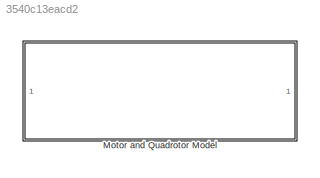
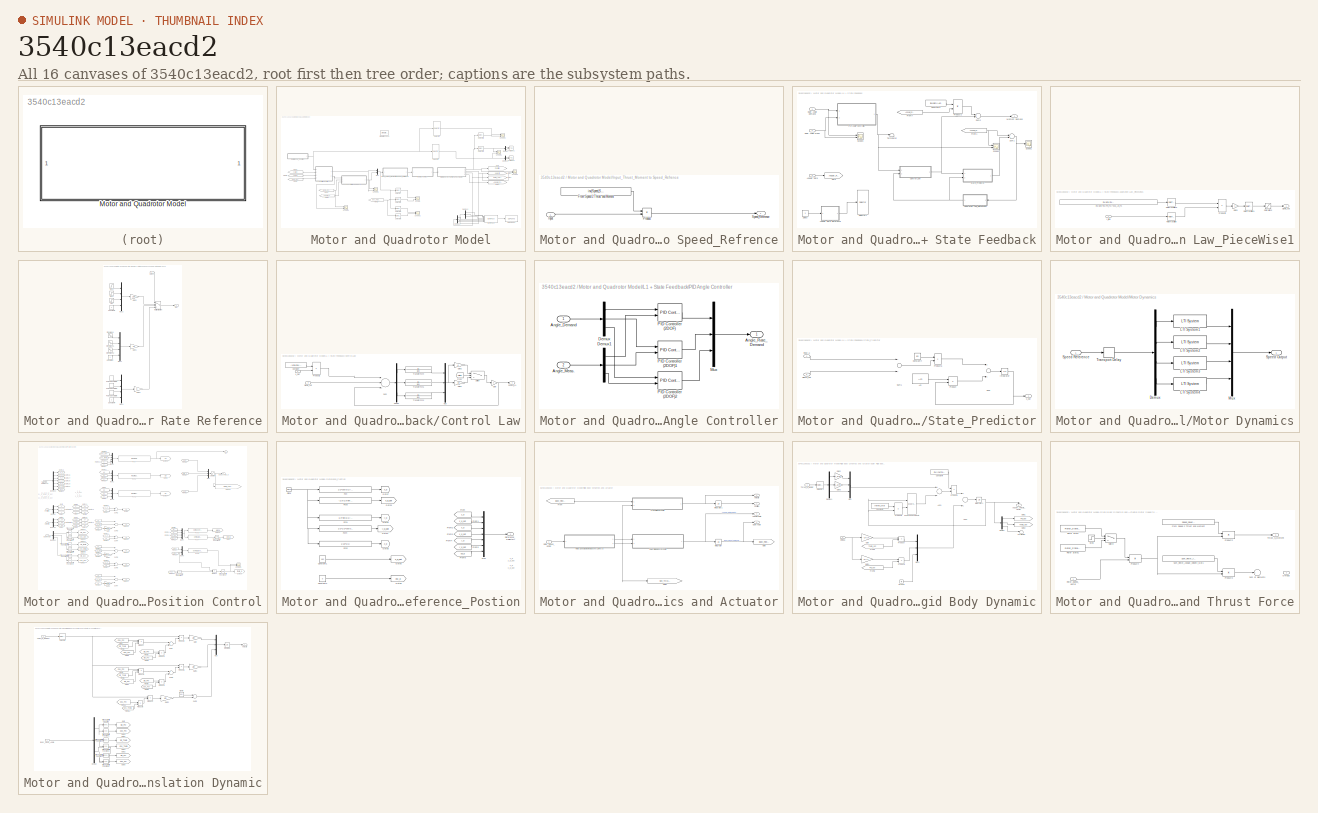
[diagram: thumbnail index - all 16 canvases of the model, root first then tree order]
MODEL slx_3540c13eacd2
KIND model
CONFIG AbsTol = auto
CONFIG FixedStep = Ts/5
CONFIG MaxStep = auto
CONFIG MinStep = auto
CONFIG RelTol = 1e-3
CONFIG SampleTimeConstraint = Unconstrained
CONFIG Solver = ode3
CONFIG SolverMode = Auto
CONFIG SolverName = ode3
CONFIG StartTime = 0.0
CONFIG StopTime = inf
BLOCK [SubSystem] Motor and Quadrotor Model
  Ports = []
  RequestExecContextInheritance = off
BLOCK [Reference] Motor and Quadrotor Model/Byte Pack  REF=etargetslib/Byte Pack
  Ports = [6, 1]
  SourceBlock = etargetslib/Byte Pack
  SourceType = Byte pack
  byteAlign = 1
  datatypes = {'double','double','double','double','double','double'}
BLOCK [Demux] Motor and Quadrotor Model/Demux
  Commented = on
  DisplayOption = bar
  Outputs = 2
  Ports = [1, 2]
BLOCK [Demux] Motor and Quadrotor Model/Demux1
  Commented = on
  DisplayOption = bar
  Outputs = 2
  Ports = [1, 2]
BLOCK [Demux] Motor and Quadrotor Model/Demux2
  DisplayOption = bar
  Outputs = 3
  Ports = [1, 3]
BLOCK [Demux] Motor and Quadrotor Model/Demux3
  DisplayOption = bar
  Outputs = 3
  Ports = [1, 3]
BLOCK [From] Motor and Quadrotor Model/From1
  GotoTag = Euler_Angle
BLOCK [From] Motor and Quadrotor Model/From2
  GotoTag = Position
BLOCK [From] Motor and Quadrotor Model/From3
  GotoTag = Mon_Thrust_N_Momet
  TagVisibility = global
BLOCK [From] Motor and Quadrotor Model/From5
  GotoTag = Velocity
BLOCK [From] Motor and Quadrotor Model/From6
  GotoTag = Euler_Angle
BLOCK [From] Motor and Quadrotor Model/From7
  GotoTag = Angular_Rate
BLOCK [Goto] Motor and Quadrotor Model/Goto
  GotoTag = Position
BLOCK [Goto] Motor and Quadrotor Model/Goto1
  GotoTag = Velocity
BLOCK [Goto] Motor and Quadrotor Model/Goto2
  GotoTag = Euler_Angle
BLOCK [Goto] Motor and Quadrotor Model/Goto3
  GotoTag = Angular_Rate
BLOCK [SubSystem] Motor and Quadrotor Model/Input_Thrust_Moment to Speed_Refrence
  Ports = [1, 1]
  RequestExecContextInheritance = off
BLOCK [Constant] Motor and Quadrotor Model/Input_Thrust_Moment to Speed_Refrence/From Speed 2 Thrust and Moment
  Value = inv(Speed_Square_to_Thrust_N_Moment_Mat)
  VectorParams1D = off
BLOCK [Inport] Motor and Quadrotor Model/Input_Thrust_Moment to Speed_Refrence/Input
  IconDisplay = Port number
BLOCK [Product] Motor and Quadrotor Model/Input_Thrust_Moment to Speed_Refrence/Product
  InputSameDT = off
  Multiplication = Matrix(*)
  OutDataTypeStr = Inherit: Inherit via internal rule
  Ports = [2, 1]
  RndMeth = Floor
  SaturateOnIntegerOverflow = off
BLOCK [Outport] Motor and Quadrotor Model/Input_Thrust_Moment to Speed_Refrence/Speed_Reference
  IconDisplay = Port number
BLOCK [SubSystem] Motor and Quadrotor Model/L1 + State Feedback
  Ports = [3, 1]
  RequestExecContextInheritance = off
BLOCK [SubSystem] Motor and Quadrotor Model/L1 + State Feedback/Adaptation Law_PieceWise1
  Ports = [1, 1]
  RequestExecContextInheritance = off
BLOCK [Constant] Motor and Quadrotor Model/L1 + State Feedback/Adaptation Law_PieceWise1/-inv(Bm)*inv(Phi_Ts)*exp_Am_Ts
  Value = inv(Bm)*inv(inv(Am)*(expm(Am*Ts)-eye(3)))*(expm(Am*Ts))
BLOCK [Gain] Motor and Quadrotor Model/L1 + State Feedback/Adaptation Law_PieceWise1/Gain3
  Gain = -1
  OutDataTypeStr = Inherit: Inherit via internal rule
  ParamDataTypeStr = Inherit: Inherit via internal rule
  SaturateOnIntegerOverflow = off
BLOCK [Product] Motor and Quadrotor Model/L1 + State Feedback/Adaptation Law_PieceWise1/Product6
  InputSameDT = off
  Multiplication = Matrix(*)
  OutDataTypeStr = Inherit: Inherit via internal rule
  Ports = [2, 1]
  RndMeth = Floor
  SaturateOnIntegerOverflow = off
BLOCK [RateTransition] Motor and Quadrotor Model/L1 + State Feedback/Adaptation Law_PieceWise1/Rate Transition
  OutPortSampleTime = Ts
BLOCK [RateTransition] Motor and Quadrotor Model/L1 + State Feedback/Adaptation Law_PieceWise1/Rate Transition1
  OutPortSampleTime = Ts
  OutPortSampleTimeOpt = Inherit
BLOCK [RateTransition] Motor and Quadrotor Model/L1 + State Feedback/Adaptation Law_PieceWise1/Rate Transition3
  OutPortSampleTime = Ts
  X0 = inv(Bm)*inv(inv(Am)*(exp(Am*Ts)-eye(3)))*(exp(Am*Ts))
BLOCK [Saturate] Motor and Quadrotor Model/L1 + State Feedback/Adaptation Law_PieceWise1/Saturation2
  InputPortMap = u0
  LowerLimit = -10000
  Ports = [1, 1]
  UpperLimit = 10000
BLOCK [Outport] Motor and Quadrotor Model/L1 + State Feedback/Adaptation Law_PieceWise1/sigma_hat
  IconDisplay = Port number
BLOCK [Inport] Motor and Quadrotor Model/L1 + State Feedback/Adaptation Law_PieceWise1/x_tilda
  IconDisplay = Port number
BLOCK [Inport] Motor and Quadrotor Model/L1 + State Feedback/Angular Rate
  IconDisplay = Port number
  Port = 3
BLOCK [SubSystem] Motor and Quadrotor Model/L1 + State Feedback/Angular Rate Reference
  Ports = [1, 1]
  RequestExecContextInheritance = off
BLOCK [Constant] Motor and Quadrotor Model/L1 + State Feedback/Angular Rate Reference/Constant
BLOCK [Constant] Motor and Quadrotor Model/L1 + State Feedback/Angular Rate Reference/Constant1
BLOCK [Constant] Motor and Quadrotor Model/L1 + State Feedback/Angular Rate Reference/Constant4
BLOCK [Gain] Motor and Quadrotor Model/L1 + State Feedback/Angular Rate Reference/Gain1
  Gain = 10
  OutDataTypeStr = Inherit: Inherit via internal rule
  ParamDataTypeStr = Inherit: Inherit via internal rule
  SaturateOnIntegerOverflow = off
BLOCK [Gain] Motor and Quadrotor Model/L1 + State Feedback/Angular Rate Reference/Gain2
  Gain = 100
  OutDataTypeStr = Inherit: Inherit via internal rule
  ParamDataTypeStr = Inherit: Inherit via internal rule
  SaturateOnIntegerOverflow = off
BLOCK [Gain] Motor and Quadrotor Model/L1 + State Feedback/Angular Rate Reference/Gain3
  OutDataTypeStr = Inherit: Inherit via internal rule
  ParamDataTypeStr = Inherit: Inherit via internal rule
  SaturateOnIntegerOverflow = off
BLOCK [MultiPortSwitch] Motor and Quadrotor Model/L1 + State Feedback/Angular Rate Reference/Multiport Switch
  InputSameDT = off
  Ports = [4, 1]
  SaturateOnIntegerOverflow = off
BLOCK [Mux] Motor and Quadrotor Model/L1 + State Feedback/Angular Rate Reference/Mux1
  DisplayOption = bar
  Ports = [4, 1]
BLOCK [Mux] Motor and Quadrotor Model/L1 + State Feedback/Angular Rate Reference/Mux2
  DisplayOption = bar
  Ports = [4, 1]
BLOCK [Mux] Motor and Quadrotor Model/L1 + State Feedback/Angular Rate Reference/Mux4
  DisplayOption = bar
  Ports = [4, 1]
BLOCK [DiscretePulseGenerator] Motor and Quadrotor Model/L1 + State Feedback/Angular Rate Reference/Pulse Generator3
  Period = 8
  PhaseDelay = 1
  Ports = [0, 1]
  PulseType = Time based
  PulseWidth = 40
BLOCK [DiscretePulseGenerator] Motor and Quadrotor Model/L1 + State Feedback/Angular Rate Reference/Pulse Generator4
  Period = 8
  PhaseDelay = 1.5
  Ports = [0, 1]
  PulseType = Time based
  PulseWidth = 40
BLOCK [DiscretePulseGenerator] Motor and Quadrotor Model/L1 + State Feedback/Angular Rate Reference/Pulse Generator5
  Amplitude = 0
  Period = 8
  PhaseDelay = 2
  Ports = [0, 1]
  PulseType = Time based
  PulseWidth = 40
BLOCK [Outport] Motor and Quadrotor Model/L1 + State Feedback/Angular Rate Reference/Ref
  IconDisplay = Port number
BLOCK [Inport] Motor and Quadrotor Model/L1 + State Feedback/Angular Rate Reference/Select
  IconDisplay = Port number
BLOCK [Sin] Motor and Quadrotor Model/L1 + State Feedback/Angular Rate Reference/Sine Wave
  Ports = [0, 1]
  SampleTime = 0
BLOCK [Sin] Motor and Quadrotor Model/L1 + State Feedback/Angular Rate Reference/Sine Wave1
  Phase = pi
  Ports = [0, 1]
  SampleTime = 0
BLOCK [Sin] Motor and Quadrotor Model/L1 + State Feedback/Angular Rate Reference/Sine Wave2
  Amplitude = 0
  Ports = [0, 1]
  SampleTime = 0
BLOCK [Step] Motor and Quadrotor Model/L1 + State Feedback/Angular Rate Reference/Step
  After = 0
  SampleTime = 0
  Time = 3
BLOCK [Step] Motor and Quadrotor Model/L1 + State Feedback/Angular Rate Reference/Step1
  SampleTime = 0
  Time = 2
BLOCK [Step] Motor and Quadrotor Model/L1 + State Feedback/Angular Rate Reference/Step2
  SampleTime = 0
BLOCK [Constant] Motor and Quadrotor Model/L1 + State Feedback/Constant3
  Value = inv(Bm)*Am
BLOCK [SubSystem] Motor and Quadrotor Model/L1 + State Feedback/Control Law
  Ports = [2, 1]
  RequestExecContextInheritance = off
BLOCK [Constant] Motor and Quadrotor Model/L1 + State Feedback/Control Law/Constant
  Value = -1*inv(inv(Am)*Bm)
BLOCK [Outport] Motor and Quadrotor Model/L1 + State Feedback/Control Law/Control_L1
  IconDisplay = Port number
BLOCK [Demux] Motor and Quadrotor Model/L1 + State Feedback/Control Law/Demux
  DisplayOption = bar
  Outputs = 3
  Ports = [1, 3]
BLOCK [From] Motor and Quadrotor Model/L1 + State Feedback/Control Law/From
  GotoTag = Switch
BLOCK [Gain] Motor and Quadrotor Model/L1 + State Feedback/Control Law/Gain
  Gain = -1
  OutDataTypeStr = Inherit: Inherit via internal rule
  ParamDataTypeStr = Inherit: Inherit via internal rule
  SaturateOnIntegerOverflow = off
BLOCK [Gain] Motor and Quadrotor Model/L1 + State Feedback/Control Law/Gain1
  Gain = 20
  OutDataTypeStr = Inherit: Inherit via internal rule
  ParamDataTypeStr = Inherit: Inherit via internal rule
  SaturateOnIntegerOverflow = off
BLOCK [Gain] Motor and Quadrotor Model/L1 + State Feedback/Control Law/Gain2
  OutDataTypeStr = Inherit: Inherit via internal rule
  ParamDataTypeStr = Inherit: Inherit via internal rule
  SaturateOnIntegerOverflow = off
BLOCK [Mux] Motor and Quadrotor Model/L1 + State Feedback/Control Law/Mux
  DisplayOption = bar
  Inputs = 3
  Ports = [3, 1]
BLOCK [Product] Motor and Quadrotor Model/L1 + State Feedback/Control Law/Product2
  InputSameDT = off
  Multiplication = Matrix(*)
  OutDataTypeStr = Inherit: Inherit via internal rule
  Ports = [2, 1]
  RndMeth = Floor
  SaturateOnIntegerOverflow = off
BLOCK [Inport] Motor and Quadrotor Model/L1 + State Feedback/Control Law/Sigma_hat.
  IconDisplay = Port number
  Port = 2
BLOCK [Sum] Motor and Quadrotor Model/L1 + State Feedback/Control Law/Sum
  InputSameDT = off
  Inputs = -++
  OutDataTypeStr = Inherit: Inherit via internal rule
  Ports = [3, 1]
  SaturateOnIntegerOverflow = off
BLOCK [Switch] Motor and Quadrotor Model/L1 + State Feedback/Control Law/Switch
  InputSameDT = off
  SaturateOnIntegerOverflow = off
  Threshold = 0.5
BLOCK [TransferFcn] Motor and Quadrotor Model/L1 + State Feedback/Control Law/Transfer Fcn1
  Denominator = [1 0]
BLOCK [TransferFcn] Motor and Quadrotor Model/L1 + State Feedback/Control Law/Transfer Fcn2
  Denominator = [1 0]
BLOCK [TransferFcn] Motor and Quadrotor Model/L1 + State Feedback/Control Law/Transfer Fcn4
  Denominator = [1 0]
BLOCK [Inport] Motor and Quadrotor Model/L1 + State Feedback/Control Law/X_Ref
  IconDisplay = Port number
BLOCK [Inport] Motor and Quadrotor Model/L1 + State Feedback/Euler Angle Demand
  IconDisplay = Port number
BLOCK [Inport] Motor and Quadrotor Model/L1 + State Feedback/Euler Angle Meas
  IconDisplay = Port number
  Port = 2
BLOCK [From] Motor and Quadrotor Model/L1 + State Feedback/From1
  GotoTag = Angular_Rate
BLOCK [From] Motor and Quadrotor Model/L1 + State Feedback/From7
  GotoTag = Angular_Rate
BLOCK [Goto] Motor and Quadrotor Model/L1 + State Feedback/Goto
  GotoTag = Angular_Rate
BLOCK [Outport] Motor and Quadrotor Model/L1 + State Feedback/Moment Demand
  IconDisplay = Port number
BLOCK [SubSystem] Motor and Quadrotor Model/L1 + State Feedback/PID Angle Controller
  Ports = [2, 1]
  RequestExecContextInheritance = off
BLOCK [Inport] Motor and Quadrotor Model/L1 + State Feedback/PID Angle Controller/Angle_Demand
  IconDisplay = Port number
BLOCK [Inport] Motor and Quadrotor Model/L1 + State Feedback/PID Angle Controller/Angle_Meas.
  IconDisplay = Port number
  Port = 2
BLOCK [Outport] Motor and Quadrotor Model/L1 + State Feedback/PID Angle Controller/Angle_Rate_Demand
  IconDisplay = Port number
BLOCK [Demux] Motor and Quadrotor Model/L1 + State Feedback/PID Angle Controller/Demux
  DisplayOption = bar
  Outputs = 3
  Ports = [1, 3]
BLOCK [Demux] Motor and Quadrotor Model/L1 + State Feedback/PID Angle Controller/Demux1
  DisplayOption = bar
  Outputs = 3
  Ports = [1, 3]
BLOCK [Mux] Motor and Quadrotor Model/L1 + State Feedback/PID Angle Controller/Mux
  DisplayOption = bar
  Inputs = 3
  Ports = [3, 1]
BLOCK [Reference] Motor and Quadrotor Model/L1 + State Feedback/PID Angle Controller/PID Controller (2DOF)  REF=simulink/Continuous/PID Controller (2DOF)
  AntiWindupMode = none
  Controller = PID
  ControllerParametersSource = internal
  D = 0.01
  DGainOutDataTypeStr = Inherit: Inherit via internal rule
  DOutDataTypeStr = Inherit: Inherit via internal rule
  DOutMax = []
  DOutMin = []
  DParamDataTypeStr = Inherit: Inherit via internal rule
  DParamMax = []
  DParamMin = []
  DProdOutDataTypeStr = Inherit: Inherit via internal rule
  DifferentiatorICPrevScaledInput = 0
  DifferentiatorOutDataTypeStr = Inherit: Inherit via internal rule
  DifferentiatorOutMax = []
  DifferentiatorOutMin = []
  ExternalReset = none
  FilterContinuousStateAttributes = ''
  FilterMethod = Forward Euler
  FilterOutDataTypeStr = Inherit: Inherit via internal rule
  FilterOutMax = []
  FilterOutMin = []
  FilterRTWStateStorageClass = Auto
  FilterStateMustResolveToSignalObject = off
  Form = Parallel
  I = 0.1
  IGainOutDataTypeStr = Inherit: Inherit via internal rule
  IOutDataTypeStr = Inherit: Inherit via internal rule
  IOutMax = []
  IOutMin = []
  IParamDataTypeStr = Inherit: Inherit via internal rule
  IParamMax = []
  IParamMin = []
  IProdOutDataTypeStr = Inherit: Inherit via internal rule
  IgnoreLimit = off
  InitialConditionForFilter = 0
  InitialConditionForIntegrator = 0
  InitialConditionSource = internal
  IntegratorContinuousStateAttributes = ''
  IntegratorMethod = Forward Euler
  IntegratorOutDataTypeStr = Inherit: Inherit via internal rule
  IntegratorOutMax = []
  IntegratorOutMin = []
  IntegratorRTWStateStorageClass = Auto
  IntegratorStateMustResolveToSignalObject = off
  Kb = 1
  KbOutDataTypeStr = Inherit: Inherit via internal rule
  KbOutMax = []
  KbOutMin = []
  KbParamDataTypeStr = Inherit: Inherit via internal rule
  KbParamMax = []
  KbParamMin = []
  Kt = 1
  KtOutDataTypeStr = Inherit: Inherit via internal rule
  KtOutMax = []
  KtOutMin = []
  KtParamDataTypeStr = Inherit: Inherit via internal rule
  KtParamMax = []
  KtParamMin = []
  LimitOutput = off
  LinearizeAsGain = on
  LockScale = off
  LowerSaturationLimit = -inf
  N = 100
  NGainOutDataTypeStr = Inherit: Inherit via internal rule
  NOutDataTypeStr = Inherit: Inherit via internal rule
  NOutMax = []
  NOutMin = []
  NParamDataTypeStr = Inherit: Inherit via internal rule
  NParamMax = []
  NParamMin = []
  NProdOutDataTypeStr = Inherit: Inherit via internal rule
  P = 10
  PGainOutDataTypeStr = Inherit: Inherit via internal rule
  POutDataTypeStr = Inherit: Inherit via internal rule
  POutMax = []
  POutMin = []
  PParamDataTypeStr = Inherit: Inherit via internal rule
  PParamMax = []
  PParamMin = []
  PProdOutDataTypeStr = Inherit: Inherit via internal rule
  Ports = [2, 1]
  RndMeth = Floor
  SampleTime = -1
  SaturateOnIntegerOverflow = off
  SaturationOutDataTypeStr = Inherit: Same as input
  SaturationOutMax = []
  SaturationOutMin = []
  SourceBlock = simulink/Continuous/PID Controller (2DOF)
  SourceType = PID 2dof
  Sum1AccumDataTypeStr = Inherit: Inherit via internal rule
  Sum1OutDataTypeStr = Inherit: Inherit via internal rule
  Sum1OutMax = []
  Sum1OutMin = []
  Sum2AccumDataTypeStr = Inherit: Inherit via internal rule
  Sum2OutDataTypeStr = Inherit: Inherit via internal rule
  Sum2OutMax = []
  Sum2OutMin = []
  Sum3AccumDataTypeStr = Inherit: Inherit via internal rule
  Sum3OutDataTypeStr = Inherit: Inherit via internal rule
  Sum3OutMax = []
  Sum3OutMin = []
  SumAccumDataTypeStr = Inherit: Inherit via internal rule
  SumDAccumDataTypeStr = Inherit: Inherit via internal rule
  SumDOutDataTypeStr = Inherit: Inherit via internal rule
  SumDOutMax = []
  SumDOutMin = []
  SumI1AccumDataTypeStr = Inherit: Inherit via internal rule
  SumI1OutDataTypeStr = Inherit: Inherit via internal rule
  SumI1OutMax = []
  SumI1OutMin = []
  SumI2AccumDataTypeStr = Inherit: Inherit via internal rule
  SumI2OutDataTypeStr = Inherit: Inherit via internal rule
  SumI2OutMax = []
  SumI2OutMin = []
  SumI3AccumDataTypeStr = Inherit: Inherit via internal rule
  SumI3OutDataTypeStr = Inherit: Inherit via internal rule
  SumI3OutMax = []
  SumI3OutMin = []
  SumOutDataTypeStr = Inherit: Inherit via internal rule
  SumOutMax = []
  SumOutMin = []
  TimeDomain = Continuous-time
  TrackingMode = off
  UpperSaturationLimit = inf
  UseFilter = on
  ZeroCross = on
  b = 1
  bGainOutDataTypeStr = Inherit: Inherit via internal rule
  bOutDataTypeStr = Inherit: Inherit via internal rule
  bOutMax = []
  bOutMin = []
  bParamDataTypeStr = Inherit: Inherit via internal rule
  bParamMax = []
  bParamMin = []
  bProdOutDataTypeStr = Inherit: Inherit via internal rule
  c = 1
  cGainOutDataTypeStr = Inherit: Inherit via internal rule
  cOutDataTypeStr = Inherit: Inherit via internal rule
  cOutMax = []
  cOutMin = []
  cParamDataTypeStr = Inherit: Inherit via internal rule
  cParamMax = []
  cParamMin = []
  cProdOutDataTypeStr = Inherit: Inherit via internal rule
BLOCK [Reference] Motor and Quadrotor Model/L1 + State Feedback/PID Angle Controller/PID Controller (2DOF)1  REF=simulink/Continuous/PID Controller (2DOF)
  AntiWindupMode = none
  Controller = PID
  ControllerParametersSource = internal
  D = 0.01
  DGainOutDataTypeStr = Inherit: Inherit via internal rule
  DOutDataTypeStr = Inherit: Inherit via internal rule
  DOutMax = []
  DOutMin = []
  DParamDataTypeStr = Inherit: Inherit via internal rule
  DParamMax = []
  DParamMin = []
  DProdOutDataTypeStr = Inherit: Inherit via internal rule
  DifferentiatorICPrevScaledInput = 0
  DifferentiatorOutDataTypeStr = Inherit: Inherit via internal rule
  DifferentiatorOutMax = []
  DifferentiatorOutMin = []
  ExternalReset = none
  FilterContinuousStateAttributes = ''
  FilterMethod = Forward Euler
  FilterOutDataTypeStr = Inherit: Inherit via internal rule
  FilterOutMax = []
  FilterOutMin = []
  FilterRTWStateStorageClass = Auto
  FilterStateMustResolveToSignalObject = off
  Form = Parallel
  I = 0.1
  IGainOutDataTypeStr = Inherit: Inherit via internal rule
  IOutDataTypeStr = Inherit: Inherit via internal rule
  IOutMax = []
  IOutMin = []
  IParamDataTypeStr = Inherit: Inherit via internal rule
  IParamMax = []
  IParamMin = []
  IProdOutDataTypeStr = Inherit: Inherit via internal rule
  IgnoreLimit = off
  InitialConditionForFilter = 0
  InitialConditionForIntegrator = 0
  InitialConditionSource = internal
  IntegratorContinuousStateAttributes = ''
  IntegratorMethod = Forward Euler
  IntegratorOutDataTypeStr = Inherit: Inherit via internal rule
  IntegratorOutMax = []
  IntegratorOutMin = []
  IntegratorRTWStateStorageClass = Auto
  IntegratorStateMustResolveToSignalObject = off
  Kb = 1
  KbOutDataTypeStr = Inherit: Inherit via internal rule
  KbOutMax = []
  KbOutMin = []
  KbParamDataTypeStr = Inherit: Inherit via internal rule
  KbParamMax = []
  KbParamMin = []
  Kt = 1
  KtOutDataTypeStr = Inherit: Inherit via internal rule
  KtOutMax = []
  KtOutMin = []
  KtParamDataTypeStr = Inherit: Inherit via internal rule
  KtParamMax = []
  KtParamMin = []
  LimitOutput = off
  LinearizeAsGain = on
  LockScale = off
  LowerSaturationLimit = -inf
  N = 100
  NGainOutDataTypeStr = Inherit: Inherit via internal rule
  NOutDataTypeStr = Inherit: Inherit via internal rule
  NOutMax = []
  NOutMin = []
  NParamDataTypeStr = Inherit: Inherit via internal rule
  NParamMax = []
  NParamMin = []
  NProdOutDataTypeStr = Inherit: Inherit via internal rule
  P = 10
  PGainOutDataTypeStr = Inherit: Inherit via internal rule
  POutDataTypeStr = Inherit: Inherit via internal rule
  POutMax = []
  POutMin = []
  PParamDataTypeStr = Inherit: Inherit via internal rule
  PParamMax = []
  PParamMin = []
  PProdOutDataTypeStr = Inherit: Inherit via internal rule
  Ports = [2, 1]
  RndMeth = Floor
  SampleTime = -1
  SaturateOnIntegerOverflow = off
  SaturationOutDataTypeStr = Inherit: Same as input
  SaturationOutMax = []
  SaturationOutMin = []
  SourceBlock = simulink/Continuous/PID Controller (2DOF)
  SourceType = PID 2dof
  Sum1AccumDataTypeStr = Inherit: Inherit via internal rule
  Sum1OutDataTypeStr = Inherit: Inherit via internal rule
  Sum1OutMax = []
  Sum1OutMin = []
  Sum2AccumDataTypeStr = Inherit: Inherit via internal rule
  Sum2OutDataTypeStr = Inherit: Inherit via internal rule
  Sum2OutMax = []
  Sum2OutMin = []
  Sum3AccumDataTypeStr = Inherit: Inherit via internal rule
  Sum3OutDataTypeStr = Inherit: Inherit via internal rule
  Sum3OutMax = []
  Sum3OutMin = []
  SumAccumDataTypeStr = Inherit: Inherit via internal rule
  SumDAccumDataTypeStr = Inherit: Inherit via internal rule
  SumDOutDataTypeStr = Inherit: Inherit via internal rule
  SumDOutMax = []
  SumDOutMin = []
  SumI1AccumDataTypeStr = Inherit: Inherit via internal rule
  SumI1OutDataTypeStr = Inherit: Inherit via internal rule
  SumI1OutMax = []
  SumI1OutMin = []
  SumI2AccumDataTypeStr = Inherit: Inherit via internal rule
  SumI2OutDataTypeStr = Inherit: Inherit via internal rule
  SumI2OutMax = []
  SumI2OutMin = []
  SumI3AccumDataTypeStr = Inherit: Inherit via internal rule
  SumI3OutDataTypeStr = Inherit: Inherit via internal rule
  SumI3OutMax = []
  SumI3OutMin = []
  SumOutDataTypeStr = Inherit: Inherit via internal rule
  SumOutMax = []
  SumOutMin = []
  TimeDomain = Continuous-time
  TrackingMode = off
  UpperSaturationLimit = inf
  UseFilter = on
  ZeroCross = on
  b = 1
  bGainOutDataTypeStr = Inherit: Inherit via internal rule
  bOutDataTypeStr = Inherit: Inherit via internal rule
  bOutMax = []
  bOutMin = []
  bParamDataTypeStr = Inherit: Inherit via internal rule
  bParamMax = []
  bParamMin = []
  bProdOutDataTypeStr = Inherit: Inherit via internal rule
  c = 1
  cGainOutDataTypeStr = Inherit: Inherit via internal rule
  cOutDataTypeStr = Inherit: Inherit via internal rule
  cOutMax = []
  cOutMin = []
  cParamDataTypeStr = Inherit: Inherit via internal rule
  cParamMax = []
  cParamMin = []
  cProdOutDataTypeStr = Inherit: Inherit via internal rule
BLOCK [Reference] Motor and Quadrotor Model/L1 + State Feedback/PID Angle Controller/PID Controller (2DOF)2  REF=simulink/Continuous/PID Controller (2DOF)
  AntiWindupMode = none
  Controller = PID
  ControllerParametersSource = internal
  D = 0.01
  DGainOutDataTypeStr = Inherit: Inherit via internal rule
  DOutDataTypeStr = Inherit: Inherit via internal rule
  DOutMax = []
  DOutMin = []
  DParamDataTypeStr = Inherit: Inherit via internal rule
  DParamMax = []
  DParamMin = []
  DProdOutDataTypeStr = Inherit: Inherit via internal rule
  DifferentiatorICPrevScaledInput = 0
  DifferentiatorOutDataTypeStr = Inherit: Inherit via internal rule
  DifferentiatorOutMax = []
  DifferentiatorOutMin = []
  ExternalReset = none
  FilterContinuousStateAttributes = ''
  FilterMethod = Forward Euler
  FilterOutDataTypeStr = Inherit: Inherit via internal rule
  FilterOutMax = []
  FilterOutMin = []
  FilterRTWStateStorageClass = Auto
  FilterStateMustResolveToSignalObject = off
  Form = Parallel
  I = 0.1
  IGainOutDataTypeStr = Inherit: Inherit via internal rule
  IOutDataTypeStr = Inherit: Inherit via internal rule
  IOutMax = []
  IOutMin = []
  IParamDataTypeStr = Inherit: Inherit via internal rule
  IParamMax = []
  IParamMin = []
  IProdOutDataTypeStr = Inherit: Inherit via internal rule
  IgnoreLimit = off
  InitialConditionForFilter = 0
  InitialConditionForIntegrator = 0
  InitialConditionSource = internal
  IntegratorContinuousStateAttributes = ''
  IntegratorMethod = Forward Euler
  IntegratorOutDataTypeStr = Inherit: Inherit via internal rule
  IntegratorOutMax = []
  IntegratorOutMin = []
  IntegratorRTWStateStorageClass = Auto
  IntegratorStateMustResolveToSignalObject = off
  Kb = 1
  KbOutDataTypeStr = Inherit: Inherit via internal rule
  KbOutMax = []
  KbOutMin = []
  KbParamDataTypeStr = Inherit: Inherit via internal rule
  KbParamMax = []
  KbParamMin = []
  Kt = 1
  KtOutDataTypeStr = Inherit: Inherit via internal rule
  KtOutMax = []
  KtOutMin = []
  KtParamDataTypeStr = Inherit: Inherit via internal rule
  KtParamMax = []
  KtParamMin = []
  LimitOutput = off
  LinearizeAsGain = on
  LockScale = off
  LowerSaturationLimit = -inf
  N = 100
  NGainOutDataTypeStr = Inherit: Inherit via internal rule
  NOutDataTypeStr = Inherit: Inherit via internal rule
  NOutMax = []
  NOutMin = []
  NParamDataTypeStr = Inherit: Inherit via internal rule
  NParamMax = []
  NParamMin = []
  NProdOutDataTypeStr = Inherit: Inherit via internal rule
  P = 1
  PGainOutDataTypeStr = Inherit: Inherit via internal rule
  POutDataTypeStr = Inherit: Inherit via internal rule
  POutMax = []
  POutMin = []
  PParamDataTypeStr = Inherit: Inherit via internal rule
  PParamMax = []
  PParamMin = []
  PProdOutDataTypeStr = Inherit: Inherit via internal rule
  Ports = [2, 1]
  RndMeth = Floor
  SampleTime = -1
  SaturateOnIntegerOverflow = off
  SaturationOutDataTypeStr = Inherit: Same as input
  SaturationOutMax = []
  SaturationOutMin = []
  SourceBlock = simulink/Continuous/PID Controller (2DOF)
  SourceType = PID 2dof
  Sum1AccumDataTypeStr = Inherit: Inherit via internal rule
  Sum1OutDataTypeStr = Inherit: Inherit via internal rule
  Sum1OutMax = []
  Sum1OutMin = []
  Sum2AccumDataTypeStr = Inherit: Inherit via internal rule
  Sum2OutDataTypeStr = Inherit: Inherit via internal rule
  Sum2OutMax = []
  Sum2OutMin = []
  Sum3AccumDataTypeStr = Inherit: Inherit via internal rule
  Sum3OutDataTypeStr = Inherit: Inherit via internal rule
  Sum3OutMax = []
  Sum3OutMin = []
  SumAccumDataTypeStr = Inherit: Inherit via internal rule
  SumDAccumDataTypeStr = Inherit: Inherit via internal rule
  SumDOutDataTypeStr = Inherit: Inherit via internal rule
  SumDOutMax = []
  SumDOutMin = []
  SumI1AccumDataTypeStr = Inherit: Inherit via internal rule
  SumI1OutDataTypeStr = Inherit: Inherit via internal rule
  SumI1OutMax = []
  SumI1OutMin = []
  SumI2AccumDataTypeStr = Inherit: Inherit via internal rule
  SumI2OutDataTypeStr = Inherit: Inherit via internal rule
  SumI2OutMax = []
  SumI2OutMin = []
  SumI3AccumDataTypeStr = Inherit: Inherit via internal rule
  SumI3OutDataTypeStr = Inherit: Inherit via internal rule
  SumI3OutMax = []
  SumI3OutMin = []
  SumOutDataTypeStr = Inherit: Inherit via internal rule
  SumOutMax = []
  SumOutMin = []
  TimeDomain = Continuous-time
  TrackingMode = off
  UpperSaturationLimit = inf
  UseFilter = on
  ZeroCross = on
  b = 1
  bGainOutDataTypeStr = Inherit: Inherit via internal rule
  bOutDataTypeStr = Inherit: Inherit via internal rule
  bOutMax = []
  bOutMin = []
  bParamDataTypeStr = Inherit: Inherit via internal rule
  bParamMax = []
  bParamMin = []
  bProdOutDataTypeStr = Inherit: Inherit via internal rule
  c = 1
  cGainOutDataTypeStr = Inherit: Inherit via internal rule
  cOutDataTypeStr = Inherit: Inherit via internal rule
  cOutMax = []
  cOutMin = []
  cParamDataTypeStr = Inherit: Inherit via internal rule
  cParamMax = []
  cParamMin = []
  cProdOutDataTypeStr = Inherit: Inherit via internal rule
BLOCK [Product] Motor and Quadrotor Model/L1 + State Feedback/Product2
  InputSameDT = off
  Multiplication = Matrix(*)
  OutDataTypeStr = Inherit: Inherit via internal rule
  Ports = [2, 1]
  RndMeth = Floor
  SaturateOnIntegerOverflow = off
BLOCK [Scope] Motor and Quadrotor Model/L1 + State Feedback/Scope1
  DataFormat = StructureWithTime
  Floating = off
  LimitDataPoints = off
  NumInputPorts = 1
  Ports = [1]
  SampleTime = 0
  SaveName = ScopeData2
  YMax = 0.05
  YMin = -0.35
  ZoomMode = yonly
BLOCK [Scope] Motor and Quadrotor Model/L1 + State Feedback/Scope2
  DataFormat = StructureWithTime
  Floating = off
  LimitDataPoints = off
  NumInputPorts = 2
  Ports = [2]
  SampleTime = 0
  SaveName = ScopeData1
  YMax = 2.5~3
  YMin = -2~-3
  ZoomMode = yonly
BLOCK [Scope] Motor and Quadrotor Model/L1 + State Feedback/Scope3
  DataFormat = StructureWithTime
  Floating = off
  LimitDataPoints = off
  NumInputPorts = 2
  Ports = [2]
  SampleTime = 0
  SaveName = ScopeData4
  YMax = 1.75~1.75
  YMin = -1.75~-1.75
  ZoomMode = yonly
BLOCK [Constant] Motor and Quadrotor Model/L1 + State Feedback/Select
  Value = 3
BLOCK [Selector] Motor and Quadrotor Model/L1 + State Feedback/Selector7
  Indices = [1 2 3]
  InputPortWidth = 4
  Ports = [1, 1]
BLOCK [SubSystem] Motor and Quadrotor Model/L1 + State Feedback/State_Predictor
  Ports = [2, 1]
  RequestExecContextInheritance = off
BLOCK [Constant] Motor and Quadrotor Model/L1 + State Feedback/State_Predictor/Am
  Value = Am
BLOCK [Constant] Motor and Quadrotor Model/L1 + State Feedback/State_Predictor/Constant4
  Value = Bm
BLOCK [Integrator] Motor and Quadrotor Model/L1 + State Feedback/State_Predictor/Integrator
  Ports = [1, 1]
BLOCK [Product] Motor and Quadrotor Model/L1 + State Feedback/State_Predictor/Product
  InputSameDT = off
  Multiplication = Matrix(*)
  OutDataTypeStr = Inherit: Inherit via internal rule
  Ports = [2, 1]
  SaturateOnIntegerOverflow = off
BLOCK [Product] Motor and Quadrotor Model/L1 + State Feedback/State_Predictor/Product6
  InputSameDT = off
  Multiplication = Matrix(*)
  OutDataTypeStr = Inherit: Inherit via internal rule
  Ports = [2, 1]
  RndMeth = Floor
  SaturateOnIntegerOverflow = off
BLOCK [Sum] Motor and Quadrotor Model/L1 + State Feedback/State_Predictor/Sum
  InputSameDT = off
  OutDataTypeStr = Inherit: Inherit via internal rule
  Ports = [2, 1]
  SaturateOnIntegerOverflow = off
BLOCK [Sum] Motor and Quadrotor Model/L1 + State Feedback/State_Predictor/Sum1
  InputSameDT = off
  OutDataTypeStr = Inherit: Inherit via internal rule
  Ports = [2, 1]
  SaturateOnIntegerOverflow = off
BLOCK [Inport] Motor and Quadrotor Model/L1 + State Feedback/State_Predictor/input_u
  IconDisplay = Port number
BLOCK [Inport] Motor and Quadrotor Model/L1 + State Feedback/State_Predictor/sigma_hat
  IconDisplay = Port number
  Port = 2
BLOCK [Outport] Motor and Quadrotor Model/L1 + State Feedback/State_Predictor/x_hat
  IconDisplay = Port number
BLOCK [Sum] Motor and Quadrotor Model/L1 + State Feedback/Sum1
  InputSameDT = off
  Inputs = -+
  OutDataTypeStr = Inherit: Inherit via internal rule
  Ports = [2, 1]
  SaturateOnIntegerOverflow = off
BLOCK [Sum] Motor and Quadrotor Model/L1 + State Feedback/Sum2
  InputSameDT = off
  OutDataTypeStr = Inherit: Inherit via internal rule
  Ports = [2, 1]
  SaturateOnIntegerOverflow = off
BLOCK [Terminator] Motor and Quadrotor Model/L1 + State Feedback/Terminator
BLOCK [SubSystem] Motor and Quadrotor Model/Motor Dynamics
  Ports = [1, 1]
  RequestExecContextInheritance = off
BLOCK [Demux] Motor and Quadrotor Model/Motor Dynamics/Demux
  DisplayOption = bar
  Ports = [1, 4]
BLOCK [Reference] Motor and Quadrotor Model/Motor Dynamics/LTI System1  REF=cstblocks/LTI System
  IC = []
  Ports = [1, 1]
  SourceBlock = cstblocks/LTI System
  SourceType = LTI Block
  sys = G_motor
BLOCK [Reference] Motor and Quadrotor Model/Motor Dynamics/LTI System2  REF=cstblocks/LTI System
  IC = []
  Ports = [1, 1]
  SourceBlock = cstblocks/LTI System
  SourceType = LTI Block
  sys = G_motor
BLOCK [Reference] Motor and Quadrotor Model/Motor Dynamics/LTI System3  REF=cstblocks/LTI System
  IC = []
  Ports = [1, 1]
  SourceBlock = cstblocks/LTI System
  SourceType = LTI Block
  sys = G_motor
BLOCK [Reference] Motor and Quadrotor Model/Motor Dynamics/LTI System4  REF=cstblocks/LTI System
  IC = []
  Ports = [1, 1]
  SourceBlock = cstblocks/LTI System
  SourceType = LTI Block
  sys = G_motor
BLOCK [Mux] Motor and Quadrotor Model/Motor Dynamics/Mux
  DisplayOption = bar
  Ports = [4, 1]
BLOCK [Outport] Motor and Quadrotor Model/Motor Dynamics/Speed Output
  IconDisplay = Port number
BLOCK [Inport] Motor and Quadrotor Model/Motor Dynamics/Speed Reference
  IconDisplay = Port number
BLOCK [TransportDelay] Motor and Quadrotor Model/Motor Dynamics/Transport Delay
  DelayTime = Delay_Act
  Ports = [1, 1]
BLOCK [Mux] Motor and Quadrotor Model/Mux
  DisplayOption = bar
  Inputs = 2
  Ports = [2, 1]
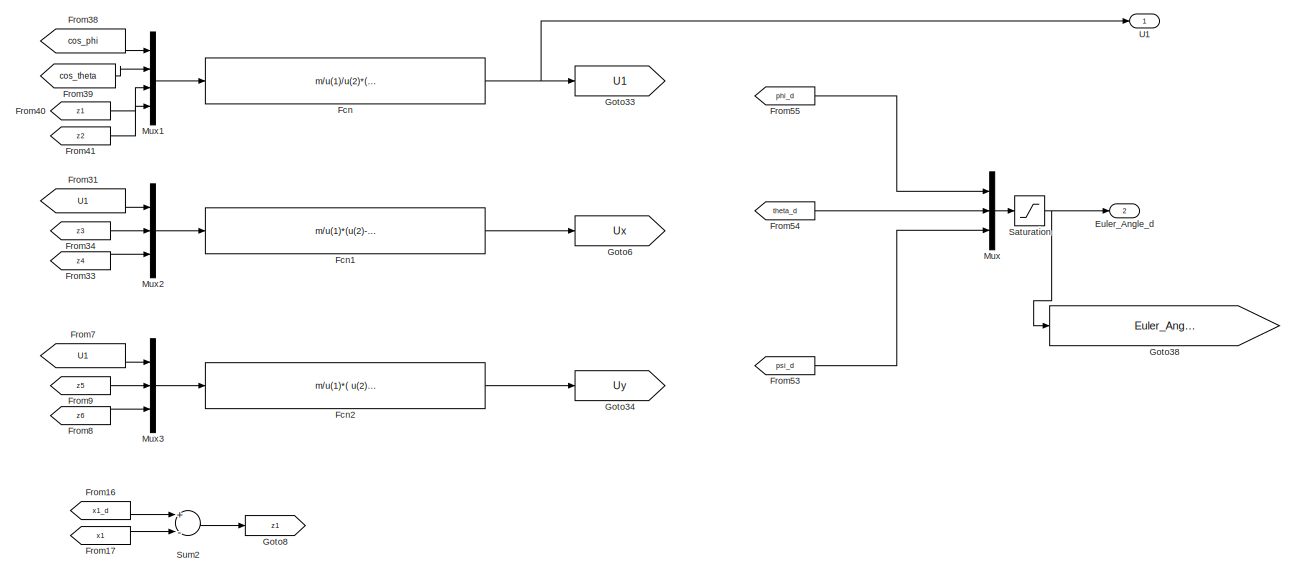
[diagram: Motor and Quadrotor Model/Position Control - part 1/3, top center region]
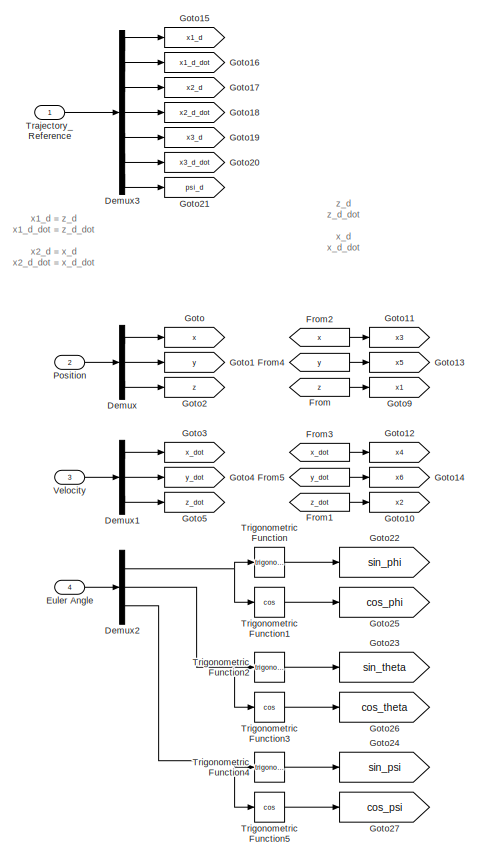
[diagram: Motor and Quadrotor Model/Position Control - part 2/3, middle left region]
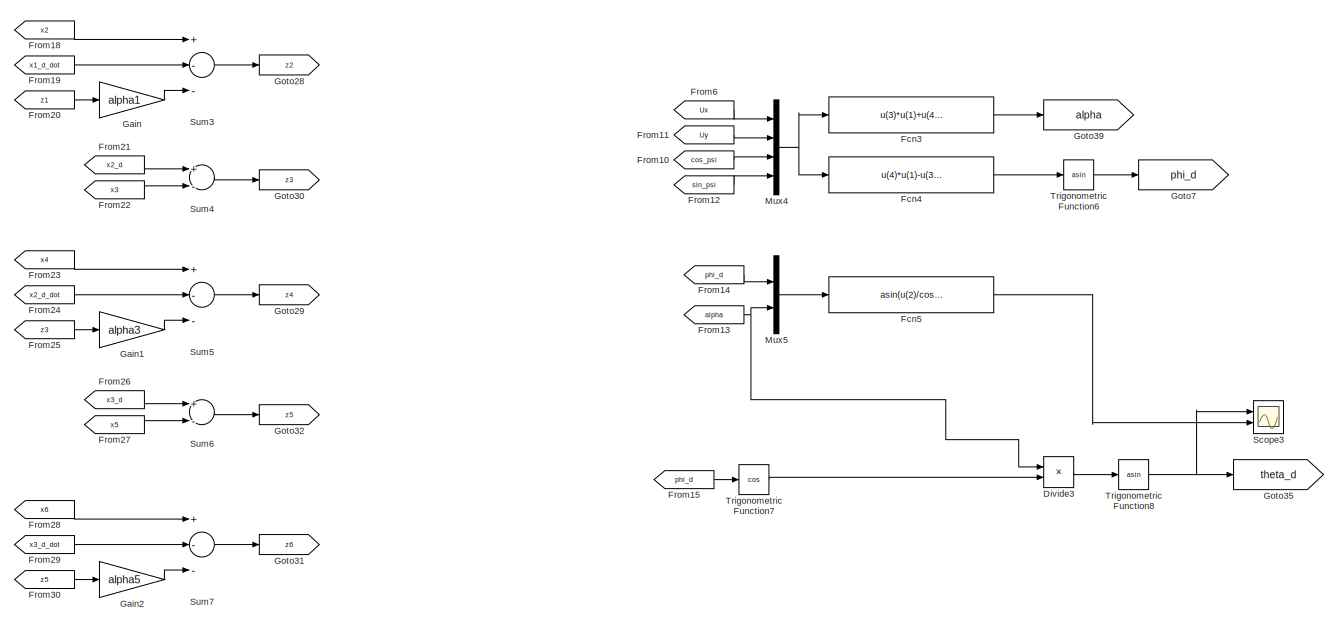
[diagram: Motor and Quadrotor Model/Position Control - part 3/3, full width, bottom band]
BLOCK [SubSystem] Motor and Quadrotor Model/Position Control
  Ports = [4, 2]
  RequestExecContextInheritance = off
BLOCK [Demux] Motor and Quadrotor Model/Position Control/Demux
  DisplayOption = bar
  Outputs = 3
  Ports = [1, 3]
BLOCK [Demux] Motor and Quadrotor Model/Position Control/Demux1
  DisplayOption = bar
  Outputs = 3
  Ports = [1, 3]
BLOCK [Demux] Motor and Quadrotor Model/Position Control/Demux2
  DisplayOption = bar
  Outputs = 3
  Ports = [1, 3]
BLOCK [Demux] Motor and Quadrotor Model/Position Control/Demux3
  DisplayOption = bar
  Outputs = 7
  Ports = [1, 7]
BLOCK [Product] Motor and Quadrotor Model/Position Control/Divide3
  InputSameDT = off
  Inputs = */
  OutDataTypeStr = Inherit: Inherit via internal rule
  Ports = [2, 1]
  RndMeth = Floor
  SaturateOnIntegerOverflow = off
BLOCK [Inport] Motor and Quadrotor Model/Position Control/Euler Angle
  IconDisplay = Port number
  Port = 4
BLOCK [Outport] Motor and Quadrotor Model/Position Control/Euler_Angle_d
  IconDisplay = Port number
  Port = 2
BLOCK [Fcn] Motor and Quadrotor Model/Position Control/Fcn
  Expr = m/u(1)/u(2)*(u(3)+g-alpha1*(u(4)+alpha1*u(3))-alpha2*u(4))
BLOCK [Fcn] Motor and Quadrotor Model/Position Control/Fcn1
  Expr = m/u(1)*(u(2)-alpha3*(u(3)+alpha3*u(2))-alpha4*u(3))
BLOCK [Fcn] Motor and Quadrotor Model/Position Control/Fcn2
  Expr = m/u(1)*( u(2)-alpha5*( u(3)+alpha5*u(2) )-alpha6*u(3) )
BLOCK [Fcn] Motor and Quadrotor Model/Position Control/Fcn3
  Expr = u(3)*u(1)+u(4)*u(2)
BLOCK [Fcn] Motor and Quadrotor Model/Position Control/Fcn4
  Expr = u(4)*u(1)-u(3)*u(2)
BLOCK [Fcn] Motor and Quadrotor Model/Position Control/Fcn5
  Expr = asin(u(2)/cos(u(1)))
BLOCK [From] Motor and Quadrotor Model/Position Control/From
  GotoTag = z
BLOCK [From] Motor and Quadrotor Model/Position Control/From1
  GotoTag = z_dot
BLOCK [From] Motor and Quadrotor Model/Position Control/From10
  GotoTag = cos_psi
BLOCK [From] Motor and Quadrotor Model/Position Control/From11
  GotoTag = Uy
BLOCK [From] Motor and Quadrotor Model/Position Control/From12
  GotoTag = sin_psi
BLOCK [From] Motor and Quadrotor Model/Position Control/From13
  GotoTag = alpha
BLOCK [From] Motor and Quadrotor Model/Position Control/From14
  GotoTag = phi_d
BLOCK [From] Motor and Quadrotor Model/Position Control/From15
  GotoTag = phi_d
BLOCK [From] Motor and Quadrotor Model/Position Control/From16
  GotoTag = x1_d
BLOCK [From] Motor and Quadrotor Model/Position Control/From17
  GotoTag = x1
BLOCK [From] Motor and Quadrotor Model/Position Control/From18
  GotoTag = x2
BLOCK [From] Motor and Quadrotor Model/Position Control/From19
  GotoTag = x1_d_dot
BLOCK [From] Motor and Quadrotor Model/Position Control/From2
  GotoTag = x
BLOCK [From] Motor and Quadrotor Model/Position Control/From20
  GotoTag = z1
BLOCK [From] Motor and Quadrotor Model/Position Control/From21
  GotoTag = x2_d
BLOCK [From] Motor and Quadrotor Model/Position Control/From22
  GotoTag = x3
BLOCK [From] Motor and Quadrotor Model/Position Control/From23
  GotoTag = x4
BLOCK [From] Motor and Quadrotor Model/Position Control/From24
  GotoTag = x2_d_dot
BLOCK [From] Motor and Quadrotor Model/Position Control/From25
  GotoTag = z3
BLOCK [From] Motor and Quadrotor Model/Position Control/From26
  GotoTag = x3_d
BLOCK [From] Motor and Quadrotor Model/Position Control/From27
  GotoTag = x5
BLOCK [From] Motor and Quadrotor Model/Position Control/From28
  GotoTag = x6
BLOCK [From] Motor and Quadrotor Model/Position Control/From29
  GotoTag = x3_d_dot
BLOCK [From] Motor and Quadrotor Model/Position Control/From3
  GotoTag = x_dot
BLOCK [From] Motor and Quadrotor Model/Position Control/From30
  GotoTag = z5
BLOCK [From] Motor and Quadrotor Model/Position Control/From31
  GotoTag = U1
BLOCK [From] Motor and Quadrotor Model/Position Control/From33
  GotoTag = z4
BLOCK [From] Motor and Quadrotor Model/Position Control/From34
  GotoTag = z3
BLOCK [From] Motor and Quadrotor Model/Position Control/From38
  GotoTag = cos_phi
BLOCK [From] Motor and Quadrotor Model/Position Control/From39
  GotoTag = cos_theta
BLOCK [From] Motor and Quadrotor Model/Position Control/From4
  GotoTag = y
BLOCK [From] Motor and Quadrotor Model/Position Control/From40
  GotoTag = z1
BLOCK [From] Motor and Quadrotor Model/Position Control/From41
  GotoTag = z2
BLOCK [From] Motor and Quadrotor Model/Position Control/From5
  GotoTag = y_dot
BLOCK [From] Motor and Quadrotor Model/Position Control/From53
  GotoTag = psi_d
BLOCK [From] Motor and Quadrotor Model/Position Control/From54
  GotoTag = theta_d
BLOCK [From] Motor and Quadrotor Model/Position Control/From55
  GotoTag = phi_d
BLOCK [From] Motor and Quadrotor Model/Position Control/From6
  GotoTag = Ux
BLOCK [From] Motor and Quadrotor Model/Position Control/From7
  GotoTag = U1
BLOCK [From] Motor and Quadrotor Model/Position Control/From8
  GotoTag = z6
BLOCK [From] Motor and Quadrotor Model/Position Control/From9
  GotoTag = z5
BLOCK [Gain] Motor and Quadrotor Model/Position Control/Gain
  Gain = alpha1
  OutDataTypeStr = Inherit: Inherit via internal rule
  ParamDataTypeStr = Inherit: Inherit via internal rule
  SaturateOnIntegerOverflow = off
BLOCK [Gain] Motor and Quadrotor Model/Position Control/Gain1
  Gain = alpha3
  OutDataTypeStr = Inherit: Inherit via internal rule
  ParamDataTypeStr = Inherit: Inherit via internal rule
  SaturateOnIntegerOverflow = off
BLOCK [Gain] Motor and Quadrotor Model/Position Control/Gain2
  Gain = alpha5
  OutDataTypeStr = Inherit: Inherit via internal rule
  ParamDataTypeStr = Inherit: Inherit via internal rule
  SaturateOnIntegerOverflow = off
BLOCK [Goto] Motor and Quadrotor Model/Position Control/Goto
  GotoTag = x
BLOCK [Goto] Motor and Quadrotor Model/Position Control/Goto1
  GotoTag = y
BLOCK [Goto] Motor and Quadrotor Model/Position Control/Goto10
  GotoTag = x2
BLOCK [Goto] Motor and Quadrotor Model/Position Control/Goto11
  GotoTag = x3
BLOCK [Goto] Motor and Quadrotor Model/Position Control/Goto12
  GotoTag = x4
BLOCK [Goto] Motor and Quadrotor Model/Position Control/Goto13
  GotoTag = x5
BLOCK [Goto] Motor and Quadrotor Model/Position Control/Goto14
  GotoTag = x6
BLOCK [Goto] Motor and Quadrotor Model/Position Control/Goto15
  GotoTag = x1_d
BLOCK [Goto] Motor and Quadrotor Model/Position Control/Goto16
  GotoTag = x1_d_dot
BLOCK [Goto] Motor and Quadrotor Model/Position Control/Goto17
  GotoTag = x2_d
BLOCK [Goto] Motor and Quadrotor Model/Position Control/Goto18
  GotoTag = x2_d_dot
BLOCK [Goto] Motor and Quadrotor Model/Position Control/Goto19
  GotoTag = x3_d
BLOCK [Goto] Motor and Quadrotor Model/Position Control/Goto2
  GotoTag = z
BLOCK [Goto] Motor and Quadrotor Model/Position Control/Goto20
  GotoTag = x3_d_dot
BLOCK [Goto] Motor and Quadrotor Model/Position Control/Goto21
  GotoTag = psi_d
BLOCK [Goto] Motor and Quadrotor Model/Position Control/Goto22
  GotoTag = sin_phi
BLOCK [Goto] Motor and Quadrotor Model/Position Control/Goto23
  GotoTag = sin_theta
BLOCK [Goto] Motor and Quadrotor Model/Position Control/Goto24
  GotoTag = sin_psi
BLOCK [Goto] Motor and Quadrotor Model/Position Control/Goto25
  GotoTag = cos_phi
BLOCK [Goto] Motor and Quadrotor Model/Position Control/Goto26
  GotoTag = cos_theta
BLOCK [Goto] Motor and Quadrotor Model/Position Control/Goto27
  GotoTag = cos_psi
BLOCK [Goto] Motor and Quadrotor Model/Position Control/Goto28
  GotoTag = z2
BLOCK [Goto] Motor and Quadrotor Model/Position Control/Goto29
  GotoTag = z4
BLOCK [Goto] Motor and Quadrotor Model/Position Control/Goto3
  GotoTag = x_dot
BLOCK [Goto] Motor and Quadrotor Model/Position Control/Goto30
  GotoTag = z3
BLOCK [Goto] Motor and Quadrotor Model/Position Control/Goto31
  GotoTag = z6
BLOCK [Goto] Motor and Quadrotor Model/Position Control/Goto32
  GotoTag = z5
BLOCK [Goto] Motor and Quadrotor Model/Position Control/Goto33
  GotoTag = U1
BLOCK [Goto] Motor and Quadrotor Model/Position Control/Goto34
  GotoTag = Uy
BLOCK [Goto] Motor and Quadrotor Model/Position Control/Goto35
  GotoTag = theta_d
BLOCK [Goto] Motor and Quadrotor Model/Position Control/Goto38
  GotoTag = Euler_Angle_Demand
  TagVisibility = global
BLOCK [Goto] Motor and Quadrotor Model/Position Control/Goto39
  GotoTag = alpha
BLOCK [Goto] Motor and Quadrotor Model/Position Control/Goto4
  GotoTag = y_dot
BLOCK [Goto] Motor and Quadrotor Model/Position Control/Goto5
  GotoTag = z_dot
BLOCK [Goto] Motor and Quadrotor Model/Position Control/Goto6
  GotoTag = Ux
BLOCK [Goto] Motor and Quadrotor Model/Position Control/Goto7
  GotoTag = phi_d
BLOCK [Goto] Motor and Quadrotor Model/Position Control/Goto8
  GotoTag = z1
BLOCK [Goto] Motor and Quadrotor Model/Position Control/Goto9
  GotoTag = x1
BLOCK [Mux] Motor and Quadrotor Model/Position Control/Mux
  DisplayOption = bar
  Inputs = 3
  Ports = [3, 1]
BLOCK [Mux] Motor and Quadrotor Model/Position Control/Mux1
  DisplayOption = bar
  Ports = [4, 1]
BLOCK [Mux] Motor and Quadrotor Model/Position Control/Mux2
  DisplayOption = bar
  Inputs = 3
  Ports = [3, 1]
BLOCK [Mux] Motor and Quadrotor Model/Position Control/Mux3
  DisplayOption = bar
  Inputs = 3
  Ports = [3, 1]
BLOCK [Mux] Motor and Quadrotor Model/Position Control/Mux4
  DisplayOption = bar
  Ports = [4, 1]
BLOCK [Mux] Motor and Quadrotor Model/Position Control/Mux5
  DisplayOption = bar
  Inputs = 2
  Ports = [2, 1]
BLOCK [Inport] Motor and Quadrotor Model/Position Control/Position
  IconDisplay = Port number
  Port = 2
BLOCK [Saturate] Motor and Quadrotor Model/Position Control/Saturation
  InputPortMap = u0
  LowerLimit = -0.1
  Ports = [1, 1]
  UpperLimit = 0.1
BLOCK [Scope] Motor and Quadrotor Model/Position Control/Scope3
  DataFormat = StructureWithTime
  Floating = off
  NumInputPorts = 2
  Ports = [2]
  SampleTime = 0
  SaveName = ScopeData8
  YMax = 5~5
  YMin = -5~-5
BLOCK [Sum] Motor and Quadrotor Model/Position Control/Sum2
  InputSameDT = off
  Inputs = +-
  OutDataTypeStr = Inherit: Inherit via internal rule
  Ports = [2, 1]
  SaturateOnIntegerOverflow = off
BLOCK [Sum] Motor and Quadrotor Model/Position Control/Sum3
  InputSameDT = off
  Inputs = +--
  OutDataTypeStr = Inherit: Inherit via internal rule
  Ports = [3, 1]
  SaturateOnIntegerOverflow = off
BLOCK [Sum] Motor and Quadrotor Model/Position Control/Sum4
  InputSameDT = off
  Inputs = +-
  OutDataTypeStr = Inherit: Inherit via internal rule
  Ports = [2, 1]
  SaturateOnIntegerOverflow = off
BLOCK [Sum] Motor and Quadrotor Model/Position Control/Sum5
  InputSameDT = off
  Inputs = +--
  OutDataTypeStr = Inherit: Inherit via internal rule
  Ports = [3, 1]
  SaturateOnIntegerOverflow = off
BLOCK [Sum] Motor and Quadrotor Model/Position Control/Sum6
  InputSameDT = off
  Inputs = +-
  OutDataTypeStr = Inherit: Inherit via internal rule
  Ports = [2, 1]
  SaturateOnIntegerOverflow = off
BLOCK [Sum] Motor and Quadrotor Model/Position Control/Sum7
  InputSameDT = off
  Inputs = +--
  OutDataTypeStr = Inherit: Inherit via internal rule
  Ports = [3, 1]
  SaturateOnIntegerOverflow = off
BLOCK [Inport] Motor and Quadrotor Model/Position Control/Trajectory_Reference
  IconDisplay = Port number
BLOCK [Trigonometry] Motor and Quadrotor Model/Position Control/Trigonometric Function
  Ports = [1, 1]
BLOCK [Trigonometry] Motor and Quadrotor Model/Position Control/Trigonometric Function1
  Operator = cos
  Ports = [1, 1]
BLOCK [Trigonometry] Motor and Quadrotor Model/Position Control/Trigonometric Function2
  Ports = [1, 1]
BLOCK [Trigonometry] Motor and Quadrotor Model/Position Control/Trigonometric Function3
  Operator = cos
  Ports = [1, 1]
BLOCK [Trigonometry] Motor and Quadrotor Model/Position Control/Trigonometric Function4
  Ports = [1, 1]
BLOCK [Trigonometry] Motor and Quadrotor Model/Position Control/Trigonometric Function5
  Operator = cos
  Ports = [1, 1]
BLOCK [Trigonometry] Motor and Quadrotor Model/Position Control/Trigonometric Function6
  Operator = asin
  Ports = [1, 1]
BLOCK [Trigonometry] Motor and Quadrotor Model/Position Control/Trigonometric Function7
  Operator = cos
  Ports = [1, 1]
BLOCK [Trigonometry] Motor and Quadrotor Model/Position Control/Trigonometric Function8
  Operator = asin
  Ports = [1, 1]
BLOCK [Outport] Motor and Quadrotor Model/Position Control/U1
  IconDisplay = Port number
BLOCK [Inport] Motor and Quadrotor Model/Position Control/Velocity
  IconDisplay = Port number
  Port = 3
BLOCK [SubSystem] Motor and Quadrotor Model/Reference_Postion
  Ports = [0, 1]
  RequestExecContextInheritance = off
BLOCK [Clock] Motor and Quadrotor Model/Reference_Postion/Clock
BLOCK [Constant] Motor and Quadrotor Model/Reference_Postion/Constant1
  Value = 1/10
BLOCK [Constant] Motor and Quadrotor Model/Reference_Postion/Constant2
  Value = 0
BLOCK [Fcn] Motor and Quadrotor Model/Reference_Postion/Fcn
  Expr = 1/2*cos(u(1)/2)
BLOCK [Fcn] Motor and Quadrotor Model/Reference_Postion/Fcn1
  Expr = 1/2*sin(u(1)/2)
BLOCK [Fcn] Motor and Quadrotor Model/Reference_Postion/Fcn2
  Expr = 1/10*u(1)
BLOCK [Fcn] Motor and Quadrotor Model/Reference_Postion/Fcn3
  Expr = -1/2*1/2*sin( u(1)/2 )
BLOCK [Fcn] Motor and Quadrotor Model/Reference_Postion/Fcn4
  Expr = 1/2*1/2*cos(u(1)/2)
BLOCK [From] Motor and Quadrotor Model/Reference_Postion/From
  GotoTag = z_d
BLOCK [From] Motor and Quadrotor Model/Reference_Postion/From1
  GotoTag = z_d_dot
BLOCK [From] Motor and Quadrotor Model/Reference_Postion/From2
  GotoTag = x_d
BLOCK [From] Motor and Quadrotor Model/Reference_Postion/From3
  GotoTag = x_d_dot
BLOCK [From] Motor and Quadrotor Model/Reference_Postion/From4
  GotoTag = y_d
BLOCK [From] Motor and Quadrotor Model/Reference_Postion/From5
  GotoTag = y_d_dot
BLOCK [From] Motor and Quadrotor Model/Reference_Postion/From6
  GotoTag = psi_d
BLOCK [Goto] Motor and Quadrotor Model/Reference_Postion/Goto1
  GotoTag = y_d
BLOCK [Goto] Motor and Quadrotor Model/Reference_Postion/Goto3
  GotoTag = x_d_dot
BLOCK [Goto] Motor and Quadrotor Model/Reference_Postion/Goto4
  GotoTag = y_d_dot
BLOCK [Goto] Motor and Quadrotor Model/Reference_Postion/Goto5
  GotoTag = z_d_dot
BLOCK [Goto] Motor and Quadrotor Model/Reference_Postion/Goto6
  GotoTag = psi_d
BLOCK [Goto] Motor and Quadrotor Model/Reference_Postion/Goto7
  GotoTag = x_d
BLOCK [Goto] Motor and Quadrotor Model/Reference_Postion/Goto8
  GotoTag = z_d
BLOCK [Mux] Motor and Quadrotor Model/Reference_Postion/Mux
  DisplayOption = bar
  Inputs = 7
  Ports = [7, 1]
BLOCK [Outport] Motor and Quadrotor Model/Reference_Postion/Reference_Trajectory
  IconDisplay = Port number
BLOCK [SubSystem] Motor and Quadrotor Model/Rigid Body Dynamics and Actuator
  Ports = [1, 4]
  RequestExecContextInheritance = off
BLOCK [Outport] Motor and Quadrotor Model/Rigid Body Dynamics and Actuator/Angular Rate
  IconDisplay = Port number
  Port = 4
BLOCK [Outport] Motor and Quadrotor Model/Rigid Body Dynamics and Actuator/Euler Angle
  IconDisplay = Port number
  Port = 3
BLOCK [SubSystem] Motor and Quadrotor Model/Rigid Body Dynamics and Actuator/Euler Rigid Body Dynamic
  Ports = [2, 1]
  RequestExecContextInheritance = off
BLOCK [Reference] Motor and Quadrotor Model/Rigid Body Dynamics and Actuator/Euler Rigid Body Dynamic/3x3 Cross Product1  REF=aerolibutil/3x3 Cross Product
  Ports = [2, 1]
  SourceBlock = aerolibutil/3x3 Cross Product
  SourceType = CrossProduct
BLOCK [Sum] Motor and Quadrotor Model/Rigid Body Dynamics and Actuator/Euler Rigid Body Dynamic/Add1
  InputSameDT = off
  Inputs = +-
  OutDataTypeStr = Inherit: Inherit via internal rule
  Ports = [2, 1]
  SaturateOnIntegerOverflow = off
BLOCK [Sum] Motor and Quadrotor Model/Rigid Body Dynamics and Actuator/Euler Rigid Body Dynamic/Add2
  InputSameDT = off
  OutDataTypeStr = Inherit: Inherit via internal rule
  Ports = [2, 1]
  SaturateOnIntegerOverflow = off
BLOCK [Outport] Motor and Quadrotor Model/Rigid Body Dynamics and Actuator/Euler Rigid Body Dynamic/Angular_Velocity_Vector
  IconDisplay = Port number
BLOCK [Constant] Motor and Quadrotor Model/Rigid Body Dynamics and Actuator/Euler Rigid Body Dynamic/Constant3
  Value = Inerita_Mat
BLOCK [Constant] Motor and Quadrotor Model/Rigid Body Dynamics and Actuator/Euler Rigid Body Dynamic/Constant4
  Value = inv(Inerita_Mat)
BLOCK [Demux] Motor and Quadrotor Model/Rigid Body Dynamics and Actuator/Euler Rigid Body Dynamic/Demux
  DisplayOption = bar
  Outputs = 3
  Ports = [1, 3]
BLOCK [Demux] Motor and Quadrotor Model/Rigid Body Dynamics and Actuator/Euler Rigid Body Dynamic/Demux1
  DisplayOption = bar
  Outputs = 3
  Ports = [1, 3]
BLOCK [From] Motor and Quadrotor Model/Rigid Body Dynamics and Actuator/Euler Rigid Body Dynamic/From1
  GotoTag = Theta_dot
BLOCK [From] Motor and Quadrotor Model/Rigid Body Dynamics and Actuator/Euler Rigid Body Dynamic/From2
  GotoTag = Phi_dot
BLOCK [Gain] Motor and Quadrotor Model/Rigid Body Dynamics and Actuator/Euler Rigid Body Dynamic/Gain
  Gain = -Jr/Ix
  OutDataTypeStr = Inherit: Inherit via internal rule
  ParamDataTypeStr = Inherit: Inherit via internal rule
  SaturateOnIntegerOverflow = off
BLOCK [Gain] Motor and Quadrotor Model/Rigid Body Dynamics and Actuator/Euler Rigid Body Dynamic/Gain1
  Gain = Jr/Iy
  OutDataTypeStr = Inherit: Inherit via internal rule
  ParamDataTypeStr = Inherit: Inherit via internal rule
  SaturateOnIntegerOverflow = off
BLOCK [Gain] Motor and Quadrotor Model/Rigid Body Dynamics and Actuator/Euler Rigid Body Dynamic/Gain2
  Gain = L_arm
  OutDataTypeStr = Inherit: Inherit via internal rule
  ParamDataTypeStr = Inherit: Inherit via internal rule
  SaturateOnIntegerOverflow = off
BLOCK [Gain] Motor and Quadrotor Model/Rigid Body Dynamics and Actuator/Euler Rigid Body Dynamic/Gain3
  Gain = L_arm
  OutDataTypeStr = Inherit: Inherit via internal rule
  ParamDataTypeStr = Inherit: Inherit via internal rule
  SaturateOnIntegerOverflow = off
BLOCK [Goto] Motor and Quadrotor Model/Rigid Body Dynamics and Actuator/Euler Rigid Body Dynamic/Goto1
  GotoTag = Phi_dot
BLOCK [Goto] Motor and Quadrotor Model/Rigid Body Dynamics and Actuator/Euler Rigid Body Dynamic/Goto2
  GotoTag = Theta_dot
BLOCK [Ground] Motor and Quadrotor Model/Rigid Body Dynamics and Actuator/Euler Rigid Body Dynamic/Ground
BLOCK [Integrator] Motor and Quadrotor Model/Rigid Body Dynamics and Actuator/Euler Rigid Body Dynamic/Integrator1
  InitialCondition = [0 0 0]
  Ports = [1, 1]
BLOCK [Mux] Motor and Quadrotor Model/Rigid Body Dynamics and Actuator/Euler Rigid Body Dynamic/Mux
  DisplayOption = bar
  Inputs = 3
  Ports = [3, 1]
BLOCK [Mux] Motor and Quadrotor Model/Rigid Body Dynamics and Actuator/Euler Rigid Body Dynamic/Mux1
  DisplayOption = bar
  Inputs = 3
  Ports = [3, 1]
BLOCK [Inport] Motor and Quadrotor Model/Rigid Body Dynamics and Actuator/Euler Rigid Body Dynamic/Omega
  IconDisplay = Port number
  Port = 2
BLOCK [Product] Motor and Quadrotor Model/Rigid Body Dynamics and Actuator/Euler Rigid Body Dynamic/Product
  InputSameDT = off
  OutDataTypeStr = Inherit: Inherit via internal rule
  Ports = [2, 1]
  RndMeth = Floor
  SaturateOnIntegerOverflow = off
BLOCK [Product] Motor and Quadrotor Model/Rigid Body Dynamics and Actuator/Euler Rigid Body Dynamic/Product1
  InputSameDT = off
  OutDataTypeStr = Inherit: Inherit via internal rule
  Ports = [2, 1]
  RndMeth = Floor
  SaturateOnIntegerOverflow = off
BLOCK [Product] Motor and Quadrotor Model/Rigid Body Dynamics and Actuator/Euler Rigid Body Dynamic/Product2
  InputSameDT = off
  Multiplication = Matrix(*)
  OutDataTypeStr = Inherit: Inherit via internal rule
  Ports = [2, 1]
  RndMeth = Floor
  SaturateOnIntegerOverflow = off
BLOCK [Product] Motor and Quadrotor Model/Rigid Body Dynamics and Actuator/Euler Rigid Body Dynamic/Product3
  InputSameDT = off
  Multiplication = Matrix(*)
  OutDataTypeStr = Inherit: Inherit via internal rule
  Ports = [2, 1]
  RndMeth = Floor
  SaturateOnIntegerOverflow = off
BLOCK [Selector] Motor and Quadrotor Model/Rigid Body Dynamics and Actuator/Euler Rigid Body Dynamic/Selector1
  Indices = [2 3 4]
  InputPortWidth = 4
  Ports = [1, 1]
BLOCK [Terminator] Motor and Quadrotor Model/Rigid Body Dynamics and Actuator/Euler Rigid Body Dynamic/Terminator
BLOCK [Inport] Motor and Quadrotor Model/Rigid Body Dynamics and Actuator/Euler Rigid Body Dynamic/Thrust_N_Momet
  IconDisplay = Port number
BLOCK [From] Motor and Quadrotor Model/Rigid Body Dynamics and Actuator/From
  GotoTag = Body_Fixed_Angle
BLOCK [Goto] Motor and Quadrotor Model/Rigid Body Dynamics and Actuator/Goto
  GotoTag = Body_Fixed_Angle
BLOCK [Goto] Motor and Quadrotor Model/Rigid Body Dynamics and Actuator/Goto1
  GotoTag = Mon_Thrust_N_Momet
  TagVisibility = global
BLOCK [Integrator] Motor and Quadrotor Model/Rigid Body Dynamics and Actuator/Integrator
  Ports = [1, 1]
BLOCK [Integrator] Motor and Quadrotor Model/Rigid Body Dynamics and Actuator/Integrator1
  InitialCondition = [0, 0, 0.5]'
  Ports = [1, 1]
BLOCK [Outport] Motor and Quadrotor Model/Rigid Body Dynamics and Actuator/Position
  IconDisplay = Port number
BLOCK [SubSystem] Motor and Quadrotor Model/Rigid Body Dynamics and Actuator/Rotor Speed to Moment and Thrust Force
  Ports = [1, 2]
  RequestExecContextInheritance = off
BLOCK [Constant] Motor and Quadrotor Model/Rigid Body Dynamics and Actuator/Rotor Speed to Moment and Thrust Force/From Speed 2 Thrust and Moment
  Value = Speed_Square_to_Thrust_N_Moment_Mat
BLOCK [Outport] Motor and Quadrotor Model/Rigid Body Dynamics and Actuator/Rotor Speed to Moment and Thrust Force/Omega
  IconDisplay = Port number
  Port = 2
BLOCK [Product] Motor and Quadrotor Model/Rigid Body Dynamics and Actuator/Rotor Speed to Moment and Thrust Force/Product2
  InputSameDT = off
  Multiplication = Matrix(*)
  OutDataTypeStr = Inherit: Inherit via internal rule
  Ports = [2, 1]
  RndMeth = Floor
  SaturateOnIntegerOverflow = off
BLOCK [Product] Motor and Quadrotor Model/Rigid Body Dynamics and Actuator/Rotor Speed to Moment and Thrust Force/Product3
  InputSameDT = off
  OutDataTypeStr = Inherit: Inherit via internal rule
  Ports = [2, 1]
  RndMeth = Floor
  SaturateOnIntegerOverflow = off
BLOCK [Product] Motor and Quadrotor Model/Rigid Body Dynamics and Actuator/Rotor Speed to Moment and Thrust Force/Product4
  InputSameDT = off
  Multiplication = Matrix(*)
  OutDataTypeStr = Inherit: Inherit via internal rule
  Ports = [2, 1]
  RndMeth = Floor
  SaturateOnIntegerOverflow = off
BLOCK [Constant] Motor and Quadrotor Model/Rigid Body Dynamics and Actuator/Rotor Speed to Moment and Thrust Force/Rotor State
  Value = Rotor_State_Fail
BLOCK [Constant] Motor and Quadrotor Model/Rigid Body Dynamics and Actuator/Rotor Speed to Moment and Thrust Force/Rotor State1
  Value = Rotor_State_Normal
BLOCK [Inport] Motor and Quadrotor Model/Rigid Body Dynamics and Actuator/Rotor Speed to Moment and Thrust Force/Rotor_Speed_Vector
  IconDisplay = Port number
BLOCK [Step] Motor and Quadrotor Model/Rigid Body Dynamics and Actuator/Rotor Speed to Moment and Thrust Force/Step
  After = 0
  SampleTime = 0
  Time = 10
BLOCK [Sum] Motor and Quadrotor Model/Rigid Body Dynamics and Actuator/Rotor Speed to Moment and Thrust Force/Sum of Elements
  InputSameDT = off
  Inputs = +
  OutDataTypeStr = Inherit: Inherit via internal rule
  Ports = [1, 1]
  SaturateOnIntegerOverflow = off
BLOCK [Constant] Motor and Quadrotor Model/Rigid Body Dynamics and Actuator/Rotor Speed to Moment and Thrust Force/Sum_Rotor_Angular_Velocity_Mat1
  Value = Sum_Rotor_Angular_Velocity_Mat
BLOCK [Switch] Motor and Quadrotor Model/Rigid Body Dynamics and Actuator/Rotor Speed to Moment and Thrust Force/Switch
  InputSameDT = off
  SaturateOnIntegerOverflow = off
  Threshold = 0.5
BLOCK [Outport] Motor and Quadrotor Model/Rigid Body Dynamics and Actuator/Rotor Speed to Moment and Thrust Force/Thrust_N_Moment
  IconDisplay = Port number
BLOCK [Inport] Motor and Quadrotor Model/Rigid Body Dynamics and Actuator/Rotor_Speed_Vector
  IconDisplay = Port number
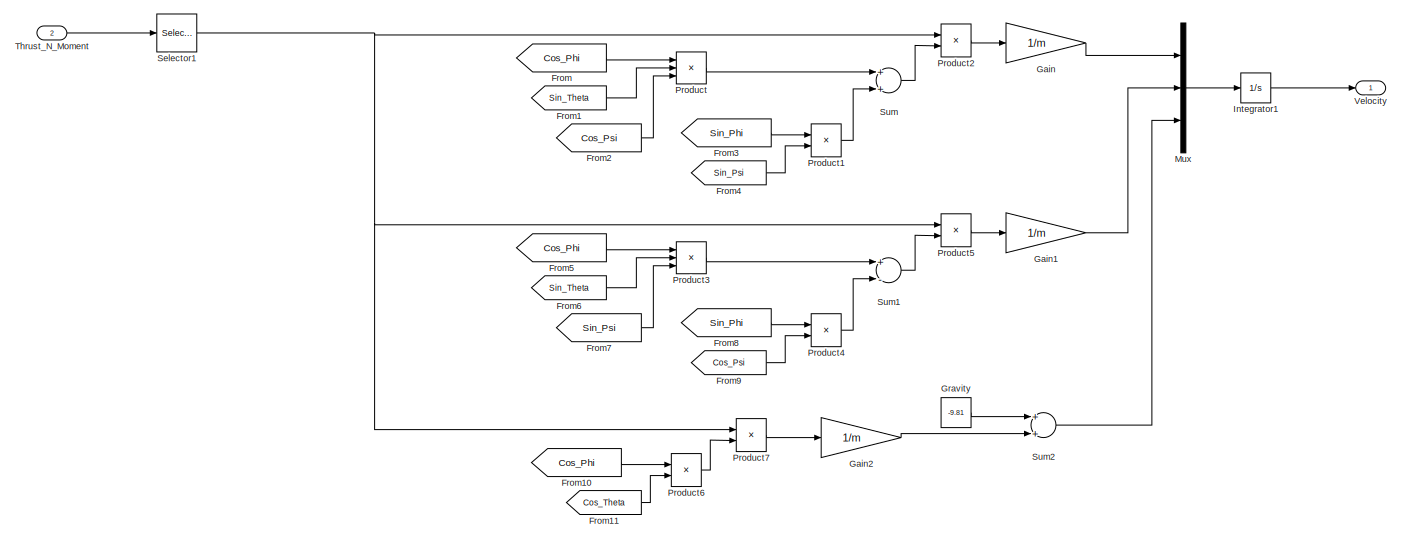
[diagram: Motor and Quadrotor Model/Rigid Body Dynamics and Actuator/Translation Dynamic - part 1/2, full width, top band]
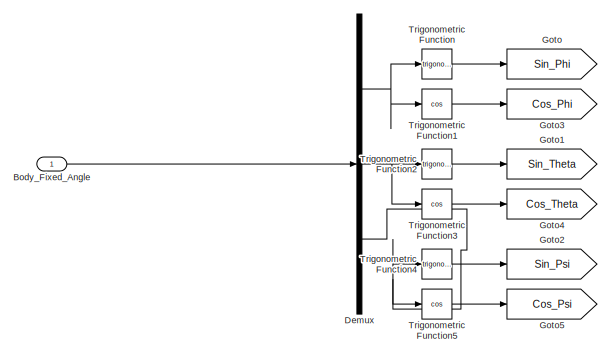
[diagram: Motor and Quadrotor Model/Rigid Body Dynamics and Actuator/Translation Dynamic - part 2/2, bottom left region]
BLOCK [SubSystem] Motor and Quadrotor Model/Rigid Body Dynamics and Actuator/Translation Dynamic
  Ports = [2, 1]
  RequestExecContextInheritance = off
BLOCK [Inport] Motor and Quadrotor Model/Rigid Body Dynamics and Actuator/Translation Dynamic/Body_Fixed_Angle
  IconDisplay = Port number
BLOCK [Demux] Motor and Quadrotor Model/Rigid Body Dynamics and Actuator/Translation Dynamic/Demux
  DisplayOption = bar
  Outputs = 3
  Ports = [1, 3]
BLOCK [From] Motor and Quadrotor Model/Rigid Body Dynamics and Actuator/Translation Dynamic/From
  GotoTag = Cos_Phi
BLOCK [From] Motor and Quadrotor Model/Rigid Body Dynamics and Actuator/Translation Dynamic/From1
  GotoTag = Sin_Theta
BLOCK [From] Motor and Quadrotor Model/Rigid Body Dynamics and Actuator/Translation Dynamic/From10
  GotoTag = Cos_Phi
BLOCK [From] Motor and Quadrotor Model/Rigid Body Dynamics and Actuator/Translation Dynamic/From11
  GotoTag = Cos_Theta
BLOCK [From] Motor and Quadrotor Model/Rigid Body Dynamics and Actuator/Translation Dynamic/From2
  GotoTag = Cos_Psi
BLOCK [From] Motor and Quadrotor Model/Rigid Body Dynamics and Actuator/Translation Dynamic/From3
  GotoTag = Sin_Phi
BLOCK [From] Motor and Quadrotor Model/Rigid Body Dynamics and Actuator/Translation Dynamic/From4
  GotoTag = Sin_Psi
BLOCK [From] Motor and Quadrotor Model/Rigid Body Dynamics and Actuator/Translation Dynamic/From5
  GotoTag = Cos_Phi
BLOCK [From] Motor and Quadrotor Model/Rigid Body Dynamics and Actuator/Translation Dynamic/From6
  GotoTag = Sin_Theta
BLOCK [From] Motor and Quadrotor Model/Rigid Body Dynamics and Actuator/Translation Dynamic/From7
  GotoTag = Sin_Psi
BLOCK [From] Motor and Quadrotor Model/Rigid Body Dynamics and Actuator/Translation Dynamic/From8
  GotoTag = Sin_Phi
BLOCK [From] Motor and Quadrotor Model/Rigid Body Dynamics and Actuator/Translation Dynamic/From9
  GotoTag = Cos_Psi
BLOCK [Gain] Motor and Quadrotor Model/Rigid Body Dynamics and Actuator/Translation Dynamic/Gain
  Gain = 1/m
  OutDataTypeStr = Inherit: Inherit via internal rule
  ParamDataTypeStr = Inherit: Inherit via internal rule
  SaturateOnIntegerOverflow = off
BLOCK [Gain] Motor and Quadrotor Model/Rigid Body Dynamics and Actuator/Translation Dynamic/Gain1
  Gain = 1/m
  OutDataTypeStr = Inherit: Inherit via internal rule
  ParamDataTypeStr = Inherit: Inherit via internal rule
  SaturateOnIntegerOverflow = off
BLOCK [Gain] Motor and Quadrotor Model/Rigid Body Dynamics and Actuator/Translation Dynamic/Gain2
  Gain = 1/m
  OutDataTypeStr = Inherit: Inherit via internal rule
  ParamDataTypeStr = Inherit: Inherit via internal rule
  SaturateOnIntegerOverflow = off
BLOCK [Goto] Motor and Quadrotor Model/Rigid Body Dynamics and Actuator/Translation Dynamic/Goto
  GotoTag = Sin_Phi
BLOCK [Goto] Motor and Quadrotor Model/Rigid Body Dynamics and Actuator/Translation Dynamic/Goto1
  GotoTag = Sin_Theta
BLOCK [Goto] Motor and Quadrotor Model/Rigid Body Dynamics and Actuator/Translation Dynamic/Goto2
  GotoTag = Sin_Psi
BLOCK [Goto] Motor and Quadrotor Model/Rigid Body Dynamics and Actuator/Translation Dynamic/Goto3
  GotoTag = Cos_Phi
BLOCK [Goto] Motor and Quadrotor Model/Rigid Body Dynamics and Actuator/Translation Dynamic/Goto4
  GotoTag = Cos_Theta
BLOCK [Goto] Motor and Quadrotor Model/Rigid Body Dynamics and Actuator/Translation Dynamic/Goto5
  GotoTag = Cos_Psi
BLOCK [Constant] Motor and Quadrotor Model/Rigid Body Dynamics and Actuator/Translation Dynamic/Gravity
  Value = -9.81
BLOCK [Integrator] Motor and Quadrotor Model/Rigid Body Dynamics and Actuator/Translation Dynamic/Integrator1
  InitialCondition = [0 0 0]
  Ports = [1, 1]
BLOCK [Mux] Motor and Quadrotor Model/Rigid Body Dynamics and Actuator/Translation Dynamic/Mux
  DisplayOption = bar
  Inputs = 3
  Ports = [3, 1]
BLOCK [Product] Motor and Quadrotor Model/Rigid Body Dynamics and Actuator/Translation Dynamic/Product
  InputSameDT = off
  Inputs = 3
  OutDataTypeStr = Inherit: Inherit via internal rule
  Ports = [3, 1]
  RndMeth = Floor
  SaturateOnIntegerOverflow = off
BLOCK [Product] Motor and Quadrotor Model/Rigid Body Dynamics and Actuator/Translation Dynamic/Product1
  InputSameDT = off
  OutDataTypeStr = Inherit: Inherit via internal rule
  Ports = [2, 1]
  RndMeth = Floor
  SaturateOnIntegerOverflow = off
BLOCK [Product] Motor and Quadrotor Model/Rigid Body Dynamics and Actuator/Translation Dynamic/Product2
  InputSameDT = off
  OutDataTypeStr = Inherit: Inherit via internal rule
  Ports = [2, 1]
  RndMeth = Floor
  SaturateOnIntegerOverflow = off
BLOCK [Product] Motor and Quadrotor Model/Rigid Body Dynamics and Actuator/Translation Dynamic/Product3
  InputSameDT = off
  Inputs = 3
  OutDataTypeStr = Inherit: Inherit via internal rule
  Ports = [3, 1]
  RndMeth = Floor
  SaturateOnIntegerOverflow = off
BLOCK [Product] Motor and Quadrotor Model/Rigid Body Dynamics and Actuator/Translation Dynamic/Product4
  InputSameDT = off
  OutDataTypeStr = Inherit: Inherit via internal rule
  Ports = [2, 1]
  RndMeth = Floor
  SaturateOnIntegerOverflow = off
BLOCK [Product] Motor and Quadrotor Model/Rigid Body Dynamics and Actuator/Translation Dynamic/Product5
  InputSameDT = off
  OutDataTypeStr = Inherit: Inherit via internal rule
  Ports = [2, 1]
  RndMeth = Floor
  SaturateOnIntegerOverflow = off
BLOCK [Product] Motor and Quadrotor Model/Rigid Body Dynamics and Actuator/Translation Dynamic/Product6
  InputSameDT = off
  OutDataTypeStr = Inherit: Inherit via internal rule
  Ports = [2, 1]
  RndMeth = Floor
  SaturateOnIntegerOverflow = off
BLOCK [Product] Motor and Quadrotor Model/Rigid Body Dynamics and Actuator/Translation Dynamic/Product7
  InputSameDT = off
  OutDataTypeStr = Inherit: Inherit via internal rule
  Ports = [2, 1]
  RndMeth = Floor
  SaturateOnIntegerOverflow = off
BLOCK [Selector] Motor and Quadrotor Model/Rigid Body Dynamics and Actuator/Translation Dynamic/Selector1
  Indices = [1]
  InputPortWidth = 4
  Ports = [1, 1]
BLOCK [Sum] Motor and Quadrotor Model/Rigid Body Dynamics and Actuator/Translation Dynamic/Sum
  InputSameDT = off
  OutDataTypeStr = Inherit: Inherit via internal rule
  Ports = [2, 1]
  SaturateOnIntegerOverflow = off
BLOCK [Sum] Motor and Quadrotor Model/Rigid Body Dynamics and Actuator/Translation Dynamic/Sum1
  InputSameDT = off
  Inputs = +-
  OutDataTypeStr = Inherit: Inherit via internal rule
  Ports = [2, 1]
  SaturateOnIntegerOverflow = off
BLOCK [Sum] Motor and Quadrotor Model/Rigid Body Dynamics and Actuator/Translation Dynamic/Sum2
  InputSameDT = off
  OutDataTypeStr = Inherit: Inherit via internal rule
  Ports = [2, 1]
  SaturateOnIntegerOverflow = off
BLOCK [Inport] Motor and Quadrotor Model/Rigid Body Dynamics and Actuator/Translation Dynamic/Thrust_N_Moment
  IconDisplay = Port number
  Port = 2
BLOCK [Trigonometry] Motor and Quadrotor Model/Rigid Body Dynamics and Actuator/Translation Dynamic/Trigonometric Function
  Ports = [1, 1]
BLOCK [Trigonometry] Motor and Quadrotor Model/Rigid Body Dynamics and Actuator/Translation Dynamic/Trigonometric Function1
  Operator = cos
  Ports = [1, 1]
BLOCK [Trigonometry] Motor and Quadrotor Model/Rigid Body Dynamics and Actuator/Translation Dynamic/Trigonometric Function2
  Ports = [1, 1]
BLOCK [Trigonometry] Motor and Quadrotor Model/Rigid Body Dynamics and Actuator/Translation Dynamic/Trigonometric Function3
  Operator = cos
  Ports = [1, 1]
BLOCK [Trigonometry] Motor and Quadrotor Model/Rigid Body Dynamics and Actuator/Translation Dynamic/Trigonometric Function4
  Ports = [1, 1]
BLOCK [Trigonometry] Motor and Quadrotor Model/Rigid Body Dynamics and Actuator/Translation Dynamic/Trigonometric Function5
  Operator = cos
  Ports = [1, 1]
BLOCK [Outport] Motor and Quadrotor Model/Rigid Body Dynamics and Actuator/Translation Dynamic/Velocity
  IconDisplay = Port number
BLOCK [Outport] Motor and Quadrotor Model/Rigid Body Dynamics and Actuator/Velocity
  IconDisplay = Port number
  Port = 2
BLOCK [Scope] Motor and Quadrotor Model/Scope
  DataFormat = StructureWithTime
  Floating = off
  NumInputPorts = 2
  Ports = [2]
  SampleTime = 0
  YMax = 0.6~0.6
  YMin = -0.6~-0.6
BLOCK [Scope] Motor and Quadrotor Model/Scope1
  Commented = on
  DataFormat = StructureWithTime
  Floating = off
  LimitDataPoints = off
  NumInputPorts = 2
  Ports = [2]
  SampleTime = 0
  SaveName = ScopeData3
  YMax = 0.6~0.5
  YMin = -0.8~-0.5
  ZoomMode = yonly
BLOCK [Scope] Motor and Quadrotor Model/Scope2
  DataFormat = StructureWithTime
  Floating = off
  NumInputPorts = 2
  Ports = [2]
  SampleTime = 0
  SaveName = ScopeData11
  YMax = 13~13
  YMin = 6~6
BLOCK [Scope] Motor and Quadrotor Model/Scope3
  Commented = on
  DataFormat = StructureWithTime
  Floating = off
  LimitDataPoints = off
  NumInputPorts = 2
  Ports = [2]
  SampleTime = 0
  SaveName = ScopeData12
  YMax = 1.095~0.985
  YMin = 1.02~0.91
  ZoomMode = yonly
BLOCK [Scope] Motor and Quadrotor Model/Scope4
  DataFormat = StructureWithTime
  Floating = off
  LimitDataPoints = off
  NumInputPorts = 2
  Ports = [2]
  SampleTime = 0
  SaveName = ScopeData5
  YMax = 0.15~0.1
  YMin = -0.175~-0.1
  ZoomMode = xonly
BLOCK [Scope] Motor and Quadrotor Model/Scope5
  DataFormat = StructureWithTime
  Floating = off
  NumInputPorts = 2
  Ports = [2]
  SampleTime = 0
  SaveName = ScopeData6
  YMax = 3~8.25
  YMin = -2.75~7.9
BLOCK [Scope] Motor and Quadrotor Model/Scope6
  DataFormat = StructureWithTime
  Floating = off
  LimitDataPoints = off
  NumInputPorts = 2
  Ports = [2]
  SampleTime = 0
  SaveName = ScopeData7
  YMax = 2.25~0.8
  YMin = -1~-0.8
  ZoomMode = yonly
BLOCK [Selector] Motor and Quadrotor Model/Selector
  Indices = [2 3 4]
  InputPortWidth = 4
  Ports = [1, 1]
BLOCK [Selector] Motor and Quadrotor Model/Selector1
  Indices = [2 3 4]
  InputPortWidth = 4
  Ports = [1, 1]
BLOCK [Selector] Motor and Quadrotor Model/Selector2
  Commented = on
  Indices = [3 5]
  InputPortWidth = 7
  Ports = [1, 1]
BLOCK [Selector] Motor and Quadrotor Model/Selector3
  Commented = on
  Indices = [1 2]
  InputPortWidth = 3
  Ports = [1, 1]
BLOCK [Selector] Motor and Quadrotor Model/Selector4
  Indices = [1]
  InputPortWidth = 4
  Ports = [1, 1]
BLOCK [Selector] Motor and Quadrotor Model/Selector5
  Indices = [1]
  InputPortWidth = 4
  Ports = [1, 1]
BLOCK [Selector] Motor and Quadrotor Model/Selector6
  Commented = on
  Indices = [3]
  InputPortWidth = 3
  Ports = [1, 1]
BLOCK [Selector] Motor and Quadrotor Model/Selector7
  Commented = on
  Indices = [1]
  InputPortWidth = 7
  Ports = [1, 1]
BLOCK [Reference] Motor and Quadrotor Model/Simulation Pace  REF=aerolibanimutils/Simulation Pace
  AttributesFormatString = %<SimulationPace> sec/sec
  OutputPaceError = off
  Ports = []
  SampleTime = -1
  SimulationPace = 1
  SleepMode = MATLAB Thread
  SourceBlock = aerolibanimutils/Simulation Pace
  SourceType = Simulation Pace
BLOCK [Reference] Motor and Quadrotor Model/UDP Send1  REF=dspnetwork/UDP Send
  Ports = [1]
  SourceBlock = dspnetwork/UDP Send
  SourceType = UDP Send
  localPort = -1
  localPortSource = Automatically determine
  localURL = '0.0.0.0'
  remotePort = 25000
  remoteURL = '127.0.0.1'
  sampletime = -1
  separateLengthPort = 0
BLOCK [Reference] Motor and Quadrotor Model/XY Graph1  REF=simulink/Sinks/XY Graph
  Commented = on
  Ports = [2]
  SourceBlock = simulink/Sinks/XY Graph
  SourceType = XY scope.
  st = -1
  xmax = 2
  xmin = -2
  ymax = 2
  ymin = -2
BLOCK [Reference] Motor and Quadrotor Model/XY Graph2  REF=simulink/Sinks/XY Graph
  Commented = on
  Ports = [2]
  SourceBlock = simulink/Sinks/XY Graph
  SourceType = XY scope.
  st = -1
  xmax = 2
  xmin = -2
  ymax = 2
  ymin = -2
ANNOTATION Motor and Quadrotor Model/Position Control: x1_d = z_d x1_d_dot = z_d_dot x2_d = x_d x2_d_dot = x_d_dot x3_d = y_d x_3_d_dot = y_d_dot psi_d
ANNOTATION Motor and Quadrotor Model/Position Control: z_d z_d_dot x_d x_d_dot y_d y_d_dot psi_d
ANNOTATION Motor and Quadrotor Model/Reference_Postion: z_d z_d_dot x_d x_d_dot y_d y_d_dot psi_d
LINE Motor and Quadrotor Model/Byte Pack:1 -> Motor and Quadrotor Model/UDP Send1:1
LINE Motor and Quadrotor Model/Demux1:1 -> Motor and Quadrotor Model/XY Graph2:1
LINE Motor and Quadrotor Model/Demux1:2 -> Motor and Quadrotor Model/XY Graph2:2
LINE Motor and Quadrotor Model/Demux2:1 -> Motor and Quadrotor Model/Byte Pack:1
LINE Motor and Quadrotor Model/Demux2:2 -> Motor and Quadrotor Model/Byte Pack:2
LINE Motor and Quadrotor Model/Demux2:3 -> Motor and Quadrotor Model/Byte Pack:3
LINE Motor and Quadrotor Model/Demux3:1 -> Motor and Quadrotor Model/Byte Pack:4
LINE Motor and Quadrotor Model/Demux3:2 -> Motor and Quadrotor Model/Byte Pack:5
LINE Motor and Quadrotor Model/Demux3:3 -> Motor and Quadrotor Model/Byte Pack:6
LINE Motor and Quadrotor Model/Demux:1 -> Motor and Quadrotor Model/XY Graph1:1
LINE Motor and Quadrotor Model/Demux:2 -> Motor and Quadrotor Model/XY Graph1:2
NET Motor and Quadrotor Model/From1:1 -> Motor and Quadrotor Model/L1 + State Feedback:2, Motor and Quadrotor Model/Scope4:1
LINE Motor and Quadrotor Model/From2:1 -> Motor and Quadrotor Model/Position Control:2
NET Motor and Quadrotor Model/From3:1 -> Motor and Quadrotor Model/Selector1:1, Motor and Quadrotor Model/Selector5:1
LINE Motor and Quadrotor Model/From5:1 -> Motor and Quadrotor Model/Position Control:3
LINE Motor and Quadrotor Model/From6:1 -> Motor and Quadrotor Model/Position Control:4
LINE Motor and Quadrotor Model/From7:1 -> Motor and Quadrotor Model/L1 + State Feedback:3
LINE Motor and Quadrotor Model/Input_Thrust_Moment to Speed_Refrence/From Speed 2 Thrust and Moment:1 -> Motor and Quadrotor Model/Input_Thrust_Moment to Speed_Refrence/Product:1
LINE Motor and Quadrotor Model/Input_Thrust_Moment to Speed_Refrence/Input:1 -> Motor and Quadrotor Model/Input_Thrust_Moment to Speed_Refrence/Product:2
LINE Motor and Quadrotor Model/Input_Thrust_Moment to Speed_Refrence/Product:1 -> Motor and Quadrotor Model/Input_Thrust_Moment to Speed_Refrence/Speed_Reference:1
LINE Motor and Quadrotor Model/Input_Thrust_Moment to Speed_Refrence:1 -> Motor and Quadrotor Model/Motor Dynamics:1
LINE Motor and Quadrotor Model/L1 + State Feedback/Adaptation Law_PieceWise1/-inv(Bm)*inv(Phi_Ts)*exp_Am_Ts:1 -> Motor and Quadrotor Model/L1 + State Feedback/Adaptation Law_PieceWise1/Rate Transition3:1
LINE Motor and Quadrotor Model/L1 + State Feedback/Adaptation Law_PieceWise1/Gain3:1 -> Motor and Quadrotor Model/L1 + State Feedback/Adaptation Law_PieceWise1/Rate Transition1:1
LINE Motor and Quadrotor Model/L1 + State Feedback/Adaptation Law_PieceWise1/Product6:1 -> Motor and Quadrotor Model/L1 + State Feedback/Adaptation Law_PieceWise1/Gain3:1
LINE Motor and Quadrotor Model/L1 + State Feedback/Adaptation Law_PieceWise1/Rate Transition1:1 -> Motor and Quadrotor Model/L1 + State Feedback/Adaptation Law_PieceWise1/Saturation2:1
LINE Motor and Quadrotor Model/L1 + State Feedback/Adaptation Law_PieceWise1/Rate Transition3:1 -> Motor and Quadrotor Model/L1 + State Feedback/Adaptation Law_PieceWise1/Product6:1
LINE Motor and Quadrotor Model/L1 + State Feedback/Adaptation Law_PieceWise1/Rate Transition:1 -> Motor and Quadrotor Model/L1 + State Feedback/Adaptation Law_PieceWise1/Product6:2
LINE Motor and Quadrotor Model/L1 + State Feedback/Adaptation Law_PieceWise1/Saturation2:1 -> Motor and Quadrotor Model/L1 + State Feedback/Adaptation Law_PieceWise1/sigma_hat:1
LINE Motor and Quadrotor Model/L1 + State Feedback/Adaptation Law_PieceWise1/x_tilda:1 -> Motor and Quadrotor Model/L1 + State Feedback/Adaptation Law_PieceWise1/Rate Transition:1
NET Motor and Quadrotor Model/L1 + State Feedback/Adaptation Law_PieceWise1:1 -> Motor and Quadrotor Model/L1 + State Feedback/Control Law:2, Motor and Quadrotor Model/L1 + State Feedback/State_Predictor:2
LINE Motor and Quadrotor Model/L1 + State Feedback/Angular Rate Reference/Constant1:1 -> Motor and Quadrotor Model/L1 + State Feedback/Angular Rate Reference/Mux2:4
LINE Motor and Quadrotor Model/L1 + State Feedback/Angular Rate Reference/Constant4:1 -> Motor and Quadrotor Model/L1 + State Feedback/Angular Rate Reference/Mux4:4
LINE Motor and Quadrotor Model/L1 + State Feedback/Angular Rate Reference/Constant:1 -> Motor and Quadrotor Model/L1 + State Feedback/Angular Rate Reference/Mux1:4
LINE Motor and Quadrotor Model/L1 + State Feedback/Angular Rate Reference/Gain1:1 -> Motor and Quadrotor Model/L1 + State Feedback/Angular Rate Reference/Multiport Switch:3
LINE Motor and Quadrotor Model/L1 + State Feedback/Angular Rate Reference/Gain2:1 -> Motor and Quadrotor Model/L1 + State Feedback/Angular Rate Reference/Multiport Switch:2
LINE Motor and Quadrotor Model/L1 + State Feedback/Angular Rate Reference/Gain3:1 -> Motor and Quadrotor Model/L1 + State Feedback/Angular Rate Reference/Multiport Switch:4
LINE Motor and Quadrotor Model/L1 + State Feedback/Angular Rate Reference/Multiport Switch:1 -> Motor and Quadrotor Model/L1 + State Feedback/Angular Rate Reference/Ref:1
LINE Motor and Quadrotor Model/L1 + State Feedback/Angular Rate Reference/Mux1:1 -> Motor and Quadrotor Model/L1 + State Feedback/Angular Rate Reference/Gain1:1
LINE Motor and Quadrotor Model/L1 + State Feedback/Angular Rate Reference/Mux2:1 -> Motor and Quadrotor Model/L1 + State Feedback/Angular Rate Reference/Gain2:1
LINE Motor and Quadrotor Model/L1 + State Feedback/Angular Rate Reference/Mux4:1 -> Motor and Quadrotor Model/L1 + State Feedback/Angular Rate Reference/Gain3:1
LINE Motor and Quadrotor Model/L1 + State Feedback/Angular Rate Reference/Pulse Generator3:1 -> Motor and Quadrotor Model/L1 + State Feedback/Angular Rate Reference/Mux4:1
LINE Motor and Quadrotor Model/L1 + State Feedback/Angular Rate Reference/Pulse Generator4:1 -> Motor and Quadrotor Model/L1 + State Feedback/Angular Rate Reference/Mux4:2
LINE Motor and Quadrotor Model/L1 + State Feedback/Angular Rate Reference/Pulse Generator5:1 -> Motor and Quadrotor Model/L1 + State Feedback/Angular Rate Reference/Mux4:3
LINE Motor and Quadrotor Model/L1 + State Feedback/Angular Rate Reference/Select:1 -> Motor and Quadrotor Model/L1 + State Feedback/Angular Rate Reference/Multiport Switch:1
LINE Motor and Quadrotor Model/L1 + State Feedback/Angular Rate Reference/Sine Wave1:1 -> Motor and Quadrotor Model/L1 + State Feedback/Angular Rate Reference/Mux1:2
LINE Motor and Quadrotor Model/L1 + State Feedback/Angular Rate Reference/Sine Wave2:1 -> Motor and Quadrotor Model/L1 + State Feedback/Angular Rate Reference/Mux1:3
LINE Motor and Quadrotor Model/L1 + State Feedback/Angular Rate Reference/Sine Wave:1 -> Motor and Quadrotor Model/L1 + State Feedback/Angular Rate Reference/Mux1:1
LINE Motor and Quadrotor Model/L1 + State Feedback/Angular Rate Reference/Step1:1 -> Motor and Quadrotor Model/L1 + State Feedback/Angular Rate Reference/Mux2:2
LINE Motor and Quadrotor Model/L1 + State Feedback/Angular Rate Reference/Step2:1 -> Motor and Quadrotor Model/L1 + State Feedback/Angular Rate Reference/Mux2:1
LINE Motor and Quadrotor Model/L1 + State Feedback/Angular Rate Reference/Step:1 -> Motor and Quadrotor Model/L1 + State Feedback/Angular Rate Reference/Mux2:3
LINE Motor and Quadrotor Model/L1 + State Feedback/Angular Rate Reference:1 -> Motor and Quadrotor Model/L1 + State Feedback/Selector7:1
LINE Motor and Quadrotor Model/L1 + State Feedback/Angular Rate:1 -> Motor and Quadrotor Model/L1 + State Feedback/Goto:1
LINE Motor and Quadrotor Model/L1 + State Feedback/Constant3:1 -> Motor and Quadrotor Model/L1 + State Feedback/Product2:1
LINE Motor and Quadrotor Model/L1 + State Feedback/Control Law/Constant:1 -> Motor and Quadrotor Model/L1 + State Feedback/Control Law/Product2:1
LINE Motor and Quadrotor Model/L1 + State Feedback/Control Law/Demux:1 -> Motor and Quadrotor Model/L1 + State Feedback/Control Law/Transfer Fcn4:1
LINE Motor and Quadrotor Model/L1 + State Feedback/Control Law/Demux:2 -> Motor and Quadrotor Model/L1 + State Feedback/Control Law/Transfer Fcn1:1
LINE Motor and Quadrotor Model/L1 + State Feedback/Control Law/Demux:3 -> Motor and Quadrotor Model/L1 + State Feedback/Control Law/Transfer Fcn2:1
LINE Motor and Quadrotor Model/L1 + State Feedback/Control Law/From:1 -> Motor and Quadrotor Model/L1 + State Feedback/Control Law/Switch:2
LINE Motor and Quadrotor Model/L1 + State Feedback/Control Law/Gain1:1 -> Motor and Quadrotor Model/L1 + State Feedback/Control Law/Switch:3
LINE Motor and Quadrotor Model/L1 + State Feedback/Control Law/Gain2:1 -> Motor and Quadrotor Model/L1 + State Feedback/Control Law/Switch:1
NET Motor and Quadrotor Model/L1 + State Feedback/Control Law/Gain:1 -> Motor and Quadrotor Model/L1 + State Feedback/Control Law/Control_L1:1, Motor and Quadrotor Model/L1 + State Feedback/Control Law/Sum:3
NET Motor and Quadrotor Model/L1 + State Feedback/Control Law/Mux:1 -> Motor and Quadrotor Model/L1 + State Feedback/Control Law/Gain1:1, Motor and Quadrotor Model/L1 + State Feedback/Control Law/Gain2:1
LINE Motor and Quadrotor Model/L1 + State Feedback/Control Law/Product2:1 -> Motor and Quadrotor Model/L1 + State Feedback/Control Law/Sum:1
LINE Motor and Quadrotor Model/L1 + State Feedback/Control Law/Sigma_hat.:1 -> Motor and Quadrotor Model/L1 + State Feedback/Control Law/Sum:2
LINE Motor and Quadrotor Model/L1 + State Feedback/Control Law/Sum:1 -> Motor and Quadrotor Model/L1 + State Feedback/Control Law/Demux:1
LINE Motor and Quadrotor Model/L1 + State Feedback/Control Law/Switch:1 -> Motor and Quadrotor Model/L1 + State Feedback/Control Law/Gain:1
LINE Motor and Quadrotor Model/L1 + State Feedback/Control Law/Transfer Fcn1:1 -> Motor and Quadrotor Model/L1 + State Feedback/Control Law/Mux:2
LINE Motor and Quadrotor Model/L1 + State Feedback/Control Law/Transfer Fcn2:1 -> Motor and Quadrotor Model/L1 + State Feedback/Control Law/Mux:3
LINE Motor and Quadrotor Model/L1 + State Feedback/Control Law/Transfer Fcn4:1 -> Motor and Quadrotor Model/L1 + State Feedback/Control Law/Mux:1
LINE Motor and Quadrotor Model/L1 + State Feedback/Control Law/X_Ref:1 -> Motor and Quadrotor Model/L1 + State Feedback/Control Law/Product2:2
NET Motor and Quadrotor Model/L1 + State Feedback/Control Law:1 -> Motor and Quadrotor Model/L1 + State Feedback/State_Predictor:1, Motor and Quadrotor Model/L1 + State Feedback/Sum2:2
NET Motor and Quadrotor Model/L1 + State Feedback/Euler Angle Demand:1 -> Motor and Quadrotor Model/L1 + State Feedback/PID Angle Controller:1, Motor and Quadrotor Model/L1 + State Feedback/Scope3:1
NET Motor and Quadrotor Model/L1 + State Feedback/Euler Angle Meas:1 -> Motor and Quadrotor Model/L1 + State Feedback/PID Angle Controller:2, Motor and Quadrotor Model/L1 + State Feedback/Scope3:2
NET Motor and Quadrotor Model/L1 + State Feedback/From1:1 -> Motor and Quadrotor Model/L1 + State Feedback/Scope2:1, Motor and Quadrotor Model/L1 + State Feedback/Sum1:1
LINE Motor and Quadrotor Model/L1 + State Feedback/From7:1 -> Motor and Quadrotor Model/L1 + State Feedback/Product2:2
LINE Motor and Quadrotor Model/L1 + State Feedback/PID Angle Controller/Angle_Demand:1 -> Motor and Quadrotor Model/L1 + State Feedback/PID Angle Controller/Demux:1
LINE Motor and Quadrotor Model/L1 + State Feedback/PID Angle Controller/Angle_Meas.:1 -> Motor and Quadrotor Model/L1 + State Feedback/PID Angle Controller/Demux1:1
LINE Motor and Quadrotor Model/L1 + State Feedback/PID Angle Controller/Demux1:1 -> Motor and Quadrotor Model/L1 + State Feedback/PID Angle Controller/PID Controller (2DOF):2
LINE Motor and Quadrotor Model/L1 + State Feedback/PID Angle Controller/Demux1:2 -> Motor and Quadrotor Model/L1 + State Feedback/PID Angle Controller/PID Controller (2DOF)1:2
LINE Motor and Quadrotor Model/L1 + State Feedback/PID Angle Controller/Demux1:3 -> Motor and Quadrotor Model/L1 + State Feedback/PID Angle Controller/PID Controller (2DOF)2:2
LINE Motor and Quadrotor Model/L1 + State Feedback/PID Angle Controller/Demux:1 -> Motor and Quadrotor Model/L1 + State Feedback/PID Angle Controller/PID Controller (2DOF):1
LINE Motor and Quadrotor Model/L1 + State Feedback/PID Angle Controller/Demux:2 -> Motor and Quadrotor Model/L1 + State Feedback/PID Angle Controller/PID Controller (2DOF)1:1
LINE Motor and Quadrotor Model/L1 + State Feedback/PID Angle Controller/Demux:3 -> Motor and Quadrotor Model/L1 + State Feedback/PID Angle Controller/PID Controller (2DOF)2:1
LINE Motor and Quadrotor Model/L1 + State Feedback/PID Angle Controller/Mux:1 -> Motor and Quadrotor Model/L1 + State Feedback/PID Angle Controller/Angle_Rate_Demand:1
LINE Motor and Quadrotor Model/L1 + State Feedback/PID Angle Controller/PID Controller (2DOF)1:1 -> Motor and Quadrotor Model/L1 + State Feedback/PID Angle Controller/Mux:2
LINE Motor and Quadrotor Model/L1 + State Feedback/PID Angle Controller/PID Controller (2DOF)2:1 -> Motor and Quadrotor Model/L1 + State Feedback/PID Angle Controller/Mux:3
LINE Motor and Quadrotor Model/L1 + State Feedback/PID Angle Controller/PID Controller (2DOF):1 -> Motor and Quadrotor Model/L1 + State Feedback/PID Angle Controller/Mux:1
NET Motor and Quadrotor Model/L1 + State Feedback/PID Angle Controller:1 -> Motor and Quadrotor Model/L1 + State Feedback/Control Law:1, Motor and Quadrotor Model/L1 + State Feedback/Scope2:2, Motor and Quadrotor Model/L1 + State Feedback/Terminator:1
LINE Motor and Quadrotor Model/L1 + State Feedback/Product2:1 -> Motor and Quadrotor Model/L1 + State Feedback/Sum2:1
LINE Motor and Quadrotor Model/L1 + State Feedback/Select:1 -> Motor and Quadrotor Model/L1 + State Feedback/Angular Rate Reference:1
LINE Motor and Quadrotor Model/L1 + State Feedback/State_Predictor/Am:1 -> Motor and Quadrotor Model/L1 + State Feedback/State_Predictor/Product:1
LINE Motor and Quadrotor Model/L1 + State Feedback/State_Predictor/Constant4:1 -> Motor and Quadrotor Model/L1 + State Feedback/State_Predictor/Product6:1
NET Motor and Quadrotor Model/L1 + State Feedback/State_Predictor/Integrator:1 -> Motor and Quadrotor Model/L1 + State Feedback/State_Predictor/Product:2, Motor and Quadrotor Model/L1 + State Feedback/State_Predictor/x_hat:1
LINE Motor and Quadrotor Model/L1 + State Feedback/State_Predictor/Product6:1 -> Motor and Quadrotor Model/L1 + State Feedback/State_Predictor/Sum:1
LINE Motor and Quadrotor Model/L1 + State Feedback/State_Predictor/Product:1 -> Motor and Quadrotor Model/L1 + State Feedback/State_Predictor/Sum:2
LINE Motor and Quadrotor Model/L1 + State Feedback/State_Predictor/Sum1:1 -> Motor and Quadrotor Model/L1 + State Feedback/State_Predictor/Product6:2
LINE Motor and Quadrotor Model/L1 + State Feedback/State_Predictor/Sum:1 -> Motor and Quadrotor Model/L1 + State Feedback/State_Predictor/Integrator:1
LINE Motor and Quadrotor Model/L1 + State Feedback/State_Predictor/input_u:1 -> Motor and Quadrotor Model/L1 + State Feedback/State_Predictor/Sum1:1
LINE Motor and Quadrotor Model/L1 + State Feedback/State_Predictor/sigma_hat:1 -> Motor and Quadrotor Model/L1 + State Feedback/State_Predictor/Sum1:2
LINE Motor and Quadrotor Model/L1 + State Feedback/State_Predictor:1 -> Motor and Quadrotor Model/L1 + State Feedback/Sum1:2
NET Motor and Quadrotor Model/L1 + State Feedback/Sum1:1 -> Motor and Quadrotor Model/L1 + State Feedback/Adaptation Law_PieceWise1:1, Motor and Quadrotor Model/L1 + State Feedback/Scope1:1
LINE Motor and Quadrotor Model/L1 + State Feedback/Sum2:1 -> Motor and Quadrotor Model/L1 + State Feedback/Moment Demand:1
NET Motor and Quadrotor Model/L1 + State Feedback:1 -> Motor and Quadrotor Model/Mux:2, Motor and Quadrotor Model/Scope5:1
LINE Motor and Quadrotor Model/Motor Dynamics/Demux:1 -> Motor and Quadrotor Model/Motor Dynamics/LTI System1:1
LINE Motor and Quadrotor Model/Motor Dynamics/Demux:2 -> Motor and Quadrotor Model/Motor Dynamics/LTI System2:1
LINE Motor and Quadrotor Model/Motor Dynamics/Demux:3 -> Motor and Quadrotor Model/Motor Dynamics/LTI System3:1
LINE Motor and Quadrotor Model/Motor Dynamics/Demux:4 -> Motor and Quadrotor Model/Motor Dynamics/LTI System4:1
LINE Motor and Quadrotor Model/Motor Dynamics/LTI System1:1 -> Motor and Quadrotor Model/Motor Dynamics/Mux:1
LINE Motor and Quadrotor Model/Motor Dynamics/LTI System2:1 -> Motor and Quadrotor Model/Motor Dynamics/Mux:2
LINE Motor and Quadrotor Model/Motor Dynamics/LTI System3:1 -> Motor and Quadrotor Model/Motor Dynamics/Mux:3
LINE Motor and Quadrotor Model/Motor Dynamics/LTI System4:1 -> Motor and Quadrotor Model/Motor Dynamics/Mux:4
LINE Motor and Quadrotor Model/Motor Dynamics/Mux:1 -> Motor and Quadrotor Model/Motor Dynamics/Speed Output:1
LINE Motor and Quadrotor Model/Motor Dynamics/Speed Reference:1 -> Motor and Quadrotor Model/Motor Dynamics/Transport Delay:1
LINE Motor and Quadrotor Model/Motor Dynamics/Transport Delay:1 -> Motor and Quadrotor Model/Motor Dynamics/Demux:1
LINE Motor and Quadrotor Model/Motor Dynamics:1 -> Motor and Quadrotor Model/Rigid Body Dynamics and Actuator:1
NET Motor and Quadrotor Model/Mux:1 -> Motor and Quadrotor Model/Input_Thrust_Moment to Speed_Refrence:1, Motor and Quadrotor Model/Selector4:1, Motor and Quadrotor Model/Selector:1
LINE Motor and Quadrotor Model/Position Control/Demux1:1 -> Motor and Quadrotor Model/Position Control/Goto3:1
LINE Motor and Quadrotor Model/Position Control/Demux1:2 -> Motor and Quadrotor Model/Position Control/Goto4:1
LINE Motor and Quadrotor Model/Position Control/Demux1:3 -> Motor and Quadrotor Model/Position Control/Goto5:1
NET Motor and Quadrotor Model/Position Control/Demux2:1 -> Motor and Quadrotor Model/Position Control/Trigonometric Function1:1, Motor and Quadrotor Model/Position Control/Trigonometric Function:1
NET Motor and Quadrotor Model/Position Control/Demux2:2 -> Motor and Quadrotor Model/Position Control/Trigonometric Function2:1, Motor and Quadrotor Model/Position Control/Trigonometric Function3:1
NET Motor and Quadrotor Model/Position Control/Demux2:3 -> Motor and Quadrotor Model/Position Control/Trigonometric Function4:1, Motor and Quadrotor Model/Position Control/Trigonometric Function5:1
LINE Motor and Quadrotor Model/Position Control/Demux3:1 -> Motor and Quadrotor Model/Position Control/Goto15:1
LINE Motor and Quadrotor Model/Position Control/Demux3:2 -> Motor and Quadrotor Model/Position Control/Goto16:1
LINE Motor and Quadrotor Model/Position Control/Demux3:3 -> Motor and Quadrotor Model/Position Control/Goto17:1
LINE Motor and Quadrotor Model/Position Control/Demux3:4 -> Motor and Quadrotor Model/Position Control/Goto18:1
LINE Motor and Quadrotor Model/Position Control/Demux3:5 -> Motor and Quadrotor Model/Position Control/Goto19:1
LINE Motor and Quadrotor Model/Position Control/Demux3:6 -> Motor and Quadrotor Model/Position Control/Goto20:1
LINE Motor and Quadrotor Model/Position Control/Demux3:7 -> Motor and Quadrotor Model/Position Control/Goto21:1
LINE Motor and Quadrotor Model/Position Control/Demux:1 -> Motor and Quadrotor Model/Position Control/Goto:1
LINE Motor and Quadrotor Model/Position Control/Demux:2 -> Motor and Quadrotor Model/Position Control/Goto1:1
LINE Motor and Quadrotor Model/Position Control/Demux:3 -> Motor and Quadrotor Model/Position Control/Goto2:1
LINE Motor and Quadrotor Model/Position Control/Divide3:1 -> Motor and Quadrotor Model/Position Control/Trigonometric Function8:1
LINE Motor and Quadrotor Model/Position Control/Euler Angle:1 -> Motor and Quadrotor Model/Position Control/Demux2:1
LINE Motor and Quadrotor Model/Position Control/Fcn1:1 -> Motor and Quadrotor Model/Position Control/Goto6:1
LINE Motor and Quadrotor Model/Position Control/Fcn2:1 -> Motor and Quadrotor Model/Position Control/Goto34:1
LINE Motor and Quadrotor Model/Position Control/Fcn3:1 -> Motor and Quadrotor Model/Position Control/Goto39:1
LINE Motor and Quadrotor Model/Position Control/Fcn4:1 -> Motor and Quadrotor Model/Position Control/Trigonometric Function6:1
LINE Motor and Quadrotor Model/Position Control/Fcn5:1 -> Motor and Quadrotor Model/Position Control/Scope3:2
NET Motor and Quadrotor Model/Position Control/Fcn:1 -> Motor and Quadrotor Model/Position Control/Goto33:1, Motor and Quadrotor Model/Position Control/U1:1
LINE Motor and Quadrotor Model/Position Control/From10:1 -> Motor and Quadrotor Model/Position Control/Mux4:3
LINE Motor and Quadrotor Model/Position Control/From11:1 -> Motor and Quadrotor Model/Position Control/Mux4:2
LINE Motor and Quadrotor Model/Position Control/From12:1 -> Motor and Quadrotor Model/Position Control/Mux4:4
NET Motor and Quadrotor Model/Position Control/From13:1 -> Motor and Quadrotor Model/Position Control/Divide3:1, Motor and Quadrotor Model/Position Control/Mux5:2
LINE Motor and Quadrotor Model/Position Control/From14:1 -> Motor and Quadrotor Model/Position Control/Mux5:1
LINE Motor and Quadrotor Model/Position Control/From15:1 -> Motor and Quadrotor Model/Position Control/Trigonometric Function7:1
LINE Motor and Quadrotor Model/Position Control/From16:1 -> Motor and Quadrotor Model/Position Control/Sum2:1
LINE Motor and Quadrotor Model/Position Control/From17:1 -> Motor and Quadrotor Model/Position Control/Sum2:2
LINE Motor and Quadrotor Model/Position Control/From18:1 -> Motor and Quadrotor Model/Position Control/Sum3:1
LINE Motor and Quadrotor Model/Position Control/From19:1 -> Motor and Quadrotor Model/Position Control/Sum3:2
LINE Motor and Quadrotor Model/Position Control/From1:1 -> Motor and Quadrotor Model/Position Control/Goto10:1
LINE Motor and Quadrotor Model/Position Control/From20:1 -> Motor and Quadrotor Model/Position Control/Gain:1
LINE Motor and Quadrotor Model/Position Control/From21:1 -> Motor and Quadrotor Model/Position Control/Sum4:1
LINE Motor and Quadrotor Model/Position Control/From22:1 -> Motor and Quadrotor Model/Position Control/Sum4:2
LINE Motor and Quadrotor Model/Position Control/From23:1 -> Motor and Quadrotor Model/Position Control/Sum5:1
LINE Motor and Quadrotor Model/Position Control/From24:1 -> Motor and Quadrotor Model/Position Control/Sum5:2
LINE Motor and Quadrotor Model/Position Control/From25:1 -> Motor and Quadrotor Model/Position Control/Gain1:1
LINE Motor and Quadrotor Model/Position Control/From26:1 -> Motor and Quadrotor Model/Position Control/Sum6:1
LINE Motor and Quadrotor Model/Position Control/From27:1 -> Motor and Quadrotor Model/Position Control/Sum6:2
LINE Motor and Quadrotor Model/Position Control/From28:1 -> Motor and Quadrotor Model/Position Control/Sum7:1
LINE Motor and Quadrotor Model/Position Control/From29:1 -> Motor and Quadrotor Model/Position Control/Sum7:2
LINE Motor and Quadrotor Model/Position Control/From2:1 -> Motor and Quadrotor Model/Position Control/Goto11:1
LINE Motor and Quadrotor Model/Position Control/From30:1 -> Motor and Quadrotor Model/Position Control/Gain2:1
LINE Motor and Quadrotor Model/Position Control/From31:1 -> Motor and Quadrotor Model/Position Control/Mux2:1
LINE Motor and Quadrotor Model/Position Control/From33:1 -> Motor and Quadrotor Model/Position Control/Mux2:3
LINE Motor and Quadrotor Model/Position Control/From34:1 -> Motor and Quadrotor Model/Position Control/Mux2:2
LINE Motor and Quadrotor Model/Position Control/From38:1 -> Motor and Quadrotor Model/Position Control/Mux1:1
LINE Motor and Quadrotor Model/Position Control/From39:1 -> Motor and Quadrotor Model/Position Control/Mux1:2
LINE Motor and Quadrotor Model/Position Control/From3:1 -> Motor and Quadrotor Model/Position Control/Goto12:1
LINE Motor and Quadrotor Model/Position Control/From40:1 -> Motor and Quadrotor Model/Position Control/Mux1:3
LINE Motor and Quadrotor Model/Position Control/From41:1 -> Motor and Quadrotor Model/Position Control/Mux1:4
LINE Motor and Quadrotor Model/Position Control/From4:1 -> Motor and Quadrotor Model/Position Control/Goto13:1
LINE Motor and Quadrotor Model/Position Control/From53:1 -> Motor and Quadrotor Model/Position Control/Mux:3
LINE Motor and Quadrotor Model/Position Control/From54:1 -> Motor and Quadrotor Model/Position Control/Mux:2
LINE Motor and Quadrotor Model/Position Control/From55:1 -> Motor and Quadrotor Model/Position Control/Mux:1
LINE Motor and Quadrotor Model/Position Control/From5:1 -> Motor and Quadrotor Model/Position Control/Goto14:1
LINE Motor and Quadrotor Model/Position Control/From6:1 -> Motor and Quadrotor Model/Position Control/Mux4:1
LINE Motor and Quadrotor Model/Position Control/From7:1 -> Motor and Quadrotor Model/Position Control/Mux3:1
LINE Motor and Quadrotor Model/Position Control/From8:1 -> Motor and Quadrotor Model/Position Control/Mux3:3
LINE Motor and Quadrotor Model/Position Control/From9:1 -> Motor and Quadrotor Model/Position Control/Mux3:2
LINE Motor and Quadrotor Model/Position Control/From:1 -> Motor and Quadrotor Model/Position Control/Goto9:1
LINE Motor and Quadrotor Model/Position Control/Gain1:1 -> Motor and Quadrotor Model/Position Control/Sum5:3
LINE Motor and Quadrotor Model/Position Control/Gain2:1 -> Motor and Quadrotor Model/Position Control/Sum7:3
LINE Motor and Quadrotor Model/Position Control/Gain:1 -> Motor and Quadrotor Model/Position Control/Sum3:3
LINE Motor and Quadrotor Model/Position Control/Mux1:1 -> Motor and Quadrotor Model/Position Control/Fcn:1
LINE Motor and Quadrotor Model/Position Control/Mux2:1 -> Motor and Quadrotor Model/Position Control/Fcn1:1
LINE Motor and Quadrotor Model/Position Control/Mux3:1 -> Motor and Quadrotor Model/Position Control/Fcn2:1
NET Motor and Quadrotor Model/Position Control/Mux4:1 -> Motor and Quadrotor Model/Position Control/Fcn3:1, Motor and Quadrotor Model/Position Control/Fcn4:1
LINE Motor and Quadrotor Model/Position Control/Mux5:1 -> Motor and Quadrotor Model/Position Control/Fcn5:1
LINE Motor and Quadrotor Model/Position Control/Mux:1 -> Motor and Quadrotor Model/Position Control/Saturation:1
LINE Motor and Quadrotor Model/Position Control/Position:1 -> Motor and Quadrotor Model/Position Control/Demux:1
NET Motor and Quadrotor Model/Position Control/Saturation:1 -> Motor and Quadrotor Model/Position Control/Euler_Angle_d:1, Motor and Quadrotor Model/Position Control/Goto38:1
LINE Motor and Quadrotor Model/Position Control/Sum2:1 -> Motor and Quadrotor Model/Position Control/Goto8:1
LINE Motor and Quadrotor Model/Position Control/Sum3:1 -> Motor and Quadrotor Model/Position Control/Goto28:1
LINE Motor and Quadrotor Model/Position Control/Sum4:1 -> Motor and Quadrotor Model/Position Control/Goto30:1
LINE Motor and Quadrotor Model/Position Control/Sum5:1 -> Motor and Quadrotor Model/Position Control/Goto29:1
LINE Motor and Quadrotor Model/Position Control/Sum6:1 -> Motor and Quadrotor Model/Position Control/Goto32:1
LINE Motor and Quadrotor Model/Position Control/Sum7:1 -> Motor and Quadrotor Model/Position Control/Goto31:1
LINE Motor and Quadrotor Model/Position Control/Trajectory_Reference:1 -> Motor and Quadrotor Model/Position Control/Demux3:1
LINE Motor and Quadrotor Model/Position Control/Trigonometric Function1:1 -> Motor and Quadrotor Model/Position Control/Goto25:1
LINE Motor and Quadrotor Model/Position Control/Trigonometric Function2:1 -> Motor and Quadrotor Model/Position Control/Goto23:1
LINE Motor and Quadrotor Model/Position Control/Trigonometric Function3:1 -> Motor and Quadrotor Model/Position Control/Goto26:1
LINE Motor and Quadrotor Model/Position Control/Trigonometric Function4:1 -> Motor and Quadrotor Model/Position Control/Goto24:1
LINE Motor and Quadrotor Model/Position Control/Trigonometric Function5:1 -> Motor and Quadrotor Model/Position Control/Goto27:1
LINE Motor and Quadrotor Model/Position Control/Trigonometric Function6:1 -> Motor and Quadrotor Model/Position Control/Goto7:1
LINE Motor and Quadrotor Model/Position Control/Trigonometric Function7:1 -> Motor and Quadrotor Model/Position Control/Divide3:2
NET Motor and Quadrotor Model/Position Control/Trigonometric Function8:1 -> Motor and Quadrotor Model/Position Control/Goto35:1, Motor and Quadrotor Model/Position Control/Scope3:1
LINE Motor and Quadrotor Model/Position Control/Trigonometric Function:1 -> Motor and Quadrotor Model/Position Control/Goto22:1
LINE Motor and Quadrotor Model/Position Control/Velocity:1 -> Motor and Quadrotor Model/Position Control/Demux1:1
NET Motor and Quadrotor Model/Position Control:1 -> Motor and Quadrotor Model/Mux:1, Motor and Quadrotor Model/Scope5:2
NET Motor and Quadrotor Model/Position Control:2 -> Motor and Quadrotor Model/L1 + State Feedback:1, Motor and Quadrotor Model/Scope4:2
NET Motor and Quadrotor Model/Reference_Postion/Clock:1 -> Motor and Quadrotor Model/Reference_Postion/Fcn1:1, Motor and Quadrotor Model/Reference_Postion/Fcn2:1, Motor and Quadrotor Model/Reference_Postion/Fcn3:1, Motor and Quadrotor Model/Reference_Postion/Fcn4:1, Motor and Quadrotor Model/Reference_Postion/Fcn:1
LINE Motor and Quadrotor Model/Reference_Postion/Constant1:1 -> Motor and Quadrotor Model/Reference_Postion/Goto5:1
LINE Motor and Quadrotor Model/Reference_Postion/Constant2:1 -> Motor and Quadrotor Model/Reference_Postion/Goto6:1
LINE Motor and Quadrotor Model/Reference_Postion/Fcn1:1 -> Motor and Quadrotor Model/Reference_Postion/Goto1:1
LINE Motor and Quadrotor Model/Reference_Postion/Fcn2:1 -> Motor and Quadrotor Model/Reference_Postion/Goto8:1
LINE Motor and Quadrotor Model/Reference_Postion/Fcn3:1 -> Motor and Quadrotor Model/Reference_Postion/Goto3:1
LINE Motor and Quadrotor Model/Reference_Postion/Fcn4:1 -> Motor and Quadrotor Model/Reference_Postion/Goto4:1
LINE Motor and Quadrotor Model/Reference_Postion/Fcn:1 -> Motor and Quadrotor Model/Reference_Postion/Goto7:1
LINE Motor and Quadrotor Model/Reference_Postion/From1:1 -> Motor and Quadrotor Model/Reference_Postion/Mux:2
LINE Motor and Quadrotor Model/Reference_Postion/From2:1 -> Motor and Quadrotor Model/Reference_Postion/Mux:3
LINE Motor and Quadrotor Model/Reference_Postion/From3:1 -> Motor and Quadrotor Model/Reference_Postion/Mux:4
LINE Motor and Quadrotor Model/Reference_Postion/From4:1 -> Motor and Quadrotor Model/Reference_Postion/Mux:5
LINE Motor and Quadrotor Model/Reference_Postion/From5:1 -> Motor and Quadrotor Model/Reference_Postion/Mux:6
LINE Motor and Quadrotor Model/Reference_Postion/From6:1 -> Motor and Quadrotor Model/Reference_Postion/Mux:7
LINE Motor and Quadrotor Model/Reference_Postion/From:1 -> Motor and Quadrotor Model/Reference_Postion/Mux:1
LINE Motor and Quadrotor Model/Reference_Postion/Mux:1 -> Motor and Quadrotor Model/Reference_Postion/Reference_Trajectory:1
NET Motor and Quadrotor Model/Reference_Postion:1 -> Motor and Quadrotor Model/Position Control:1, Motor and Quadrotor Model/Selector2:1, Motor and Quadrotor Model/Selector7:1
LINE Motor and Quadrotor Model/Rigid Body Dynamics and Actuator/Euler Rigid Body Dynamic/3x3 Cross Product1:1 -> Motor and Quadrotor Model/Rigid Body Dynamics and Actuator/Euler Rigid Body Dynamic/Add1:2
LINE Motor and Quadrotor Model/Rigid Body Dynamics and Actuator/Euler Rigid Body Dynamic/Add1:1 -> Motor and Quadrotor Model/Rigid Body Dynamics and Actuator/Euler Rigid Body Dynamic/Product3:2
LINE Motor and Quadrotor Model/Rigid Body Dynamics and Actuator/Euler Rigid Body Dynamic/Add2:1 -> Motor and Quadrotor Model/Rigid Body Dynamics and Actuator/Euler Rigid Body Dynamic/Integrator1:1
LINE Motor and Quadrotor Model/Rigid Body Dynamics and Actuator/Euler Rigid Body Dynamic/Constant3:1 -> Motor and Quadrotor Model/Rigid Body Dynamics and Actuator/Euler Rigid Body Dynamic/Product2:1
LINE Motor and Quadrotor Model/Rigid Body Dynamics and Actuator/Euler Rigid Body Dynamic/Constant4:1 -> Motor and Quadrotor Model/Rigid Body Dynamics and Actuator/Euler Rigid Body Dynamic/Product3:1
LINE Motor and Quadrotor Model/Rigid Body Dynamics and Actuator/Euler Rigid Body Dynamic/Demux1:1 -> Motor and Quadrotor Model/Rigid Body Dynamics and Actuator/Euler Rigid Body Dynamic/Gain2:1
LINE Motor and Quadrotor Model/Rigid Body Dynamics and Actuator/Euler Rigid Body Dynamic/Demux1:2 -> Motor and Quadrotor Model/Rigid Body Dynamics and Actuator/Euler Rigid Body Dynamic/Gain3:1
LINE Motor and Quadrotor Model/Rigid Body Dynamics and Actuator/Euler Rigid Body Dynamic/Demux1:3 -> Motor and Quadrotor Model/Rigid Body Dynamics and Actuator/Euler Rigid Body Dynamic/Mux:3
LINE Motor and Quadrotor Model/Rigid Body Dynamics and Actuator/Euler Rigid Body Dynamic/Demux:1 -> Motor and Quadrotor Model/Rigid Body Dynamics and Actuator/Euler Rigid Body Dynamic/Goto1:1
LINE Motor and Quadrotor Model/Rigid Body Dynamics and Actuator/Euler Rigid Body Dynamic/Demux:2 -> Motor and Quadrotor Model/Rigid Body Dynamics and Actuator/Euler Rigid Body Dynamic/Goto2:1
LINE Motor and Quadrotor Model/Rigid Body Dynamics and Actuator/Euler Rigid Body Dynamic/Demux:3 -> Motor and Quadrotor Model/Rigid Body Dynamics and Actuator/Euler Rigid Body Dynamic/Terminator:1
LINE Motor and Quadrotor Model/Rigid Body Dynamics and Actuator/Euler Rigid Body Dynamic/From1:1 -> Motor and Quadrotor Model/Rigid Body Dynamics and Actuator/Euler Rigid Body Dynamic/Product:2
LINE Motor and Quadrotor Model/Rigid Body Dynamics and Actuator/Euler Rigid Body Dynamic/From2:1 -> Motor and Quadrotor Model/Rigid Body Dynamics and Actuator/Euler Rigid Body Dynamic/Product1:2
LINE Motor and Quadrotor Model/Rigid Body Dynamics and Actuator/Euler Rigid Body Dynamic/Gain1:1 -> Motor and Quadrotor Model/Rigid Body Dynamics and Actuator/Euler Rigid Body Dynamic/Product1:1
LINE Motor and Quadrotor Model/Rigid Body Dynamics and Actuator/Euler Rigid Body Dynamic/Gain2:1 -> Motor and Quadrotor Model/Rigid Body Dynamics and Actuator/Euler Rigid Body Dynamic/Mux:1
LINE Motor and Quadrotor Model/Rigid Body Dynamics and Actuator/Euler Rigid Body Dynamic/Gain3:1 -> Motor and Quadrotor Model/Rigid Body Dynamics and Actuator/Euler Rigid Body Dynamic/Mux:2
LINE Motor and Quadrotor Model/Rigid Body Dynamics and Actuator/Euler Rigid Body Dynamic/Gain:1 -> Motor and Quadrotor Model/Rigid Body Dynamics and Actuator/Euler Rigid Body Dynamic/Product:1
LINE Motor and Quadrotor Model/Rigid Body Dynamics and Actuator/Euler Rigid Body Dynamic/Ground:1 -> Motor and Quadrotor Model/Rigid Body Dynamics and Actuator/Euler Rigid Body Dynamic/Mux1:3
NET Motor and Quadrotor Model/Rigid Body Dynamics and Actuator/Euler Rigid Body Dynamic/Integrator1:1 -> Motor and Quadrotor Model/Rigid Body Dynamics and Actuator/Euler Rigid Body Dynamic/3x3 Cross Product1:1, Motor and Quadrotor Model/Rigid Body Dynamics and Actuator/Euler Rigid Body Dynamic/Angular_Velocity_Vector:1, Motor and Quadrotor Model/Rigid Body Dynamics and Actuator/Euler Rigid Body Dynamic/Demux:1, Motor and Quadrotor Model/Rigid Body Dynamics and Actuator/Euler Rigid Body Dynamic/Product2:2
LINE Motor and Quadrotor Model/Rigid Body Dynamics and Actuator/Euler Rigid Body Dynamic/Mux1:1 -> Motor and Quadrotor Model/Rigid Body Dynamics and Actuator/Euler Rigid Body Dynamic/Add2:2
LINE Motor and Quadrotor Model/Rigid Body Dynamics and Actuator/Euler Rigid Body Dynamic/Mux:1 -> Motor and Quadrotor Model/Rigid Body Dynamics and Actuator/Euler Rigid Body Dynamic/Add1:1
NET Motor and Quadrotor Model/Rigid Body Dynamics and Actuator/Euler Rigid Body Dynamic/Omega:1 -> Motor and Quadrotor Model/Rigid Body Dynamics and Actuator/Euler Rigid Body Dynamic/Gain1:1, Motor and Quadrotor Model/Rigid Body Dynamics and Actuator/Euler Rigid Body Dynamic/Gain:1
LINE Motor and Quadrotor Model/Rigid Body Dynamics and Actuator/Euler Rigid Body Dynamic/Product1:1 -> Motor and Quadrotor Model/Rigid Body Dynamics and Actuator/Euler Rigid Body Dynamic/Mux1:2
LINE Motor and Quadrotor Model/Rigid Body Dynamics and Actuator/Euler Rigid Body Dynamic/Product2:1 -> Motor and Quadrotor Model/Rigid Body Dynamics and Actuator/Euler Rigid Body Dynamic/3x3 Cross Product1:2
LINE Motor and Quadrotor Model/Rigid Body Dynamics and Actuator/Euler Rigid Body Dynamic/Product3:1 -> Motor and Quadrotor Model/Rigid Body Dynamics and Actuator/Euler Rigid Body Dynamic/Add2:1
LINE Motor and Quadrotor Model/Rigid Body Dynamics and Actuator/Euler Rigid Body Dynamic/Product:1 -> Motor and Quadrotor Model/Rigid Body Dynamics and Actuator/Euler Rigid Body Dynamic/Mux1:1
LINE Motor and Quadrotor Model/Rigid Body Dynamics and Actuator/Euler Rigid Body Dynamic/Selector1:1 -> Motor and Quadrotor Model/Rigid Body Dynamics and Actuator/Euler Rigid Body Dynamic/Demux1:1
LINE Motor and Quadrotor Model/Rigid Body Dynamics and Actuator/Euler Rigid Body Dynamic/Thrust_N_Momet:1 -> Motor and Quadrotor Model/Rigid Body Dynamics and Actuator/Euler Rigid Body Dynamic/Selector1:1
NET Motor and Quadrotor Model/Rigid Body Dynamics and Actuator/Euler Rigid Body Dynamic:1 -> Motor and Quadrotor Model/Rigid Body Dynamics and Actuator/Angular Rate:1, Motor and Quadrotor Model/Rigid Body Dynamics and Actuator/Integrator:1
LINE Motor and Quadrotor Model/Rigid Body Dynamics and Actuator/From:1 -> Motor and Quadrotor Model/Rigid Body Dynamics and Actuator/Translation Dynamic:1
LINE Motor and Quadrotor Model/Rigid Body Dynamics and Actuator/Integrator1:1 -> Motor and Quadrotor Model/Rigid Body Dynamics and Actuator/Position:1
NET Motor and Quadrotor Model/Rigid Body Dynamics and Actuator/Integrator:1 -> Motor and Quadrotor Model/Rigid Body Dynamics and Actuator/Euler Angle:1, Motor and Quadrotor Model/Rigid Body Dynamics and Actuator/Goto:1
LINE Motor and Quadrotor Model/Rigid Body Dynamics and Actuator/Rotor Speed to Moment and Thrust Force/From Speed 2 Thrust and Moment:1 -> Motor and Quadrotor Model/Rigid Body Dynamics and Actuator/Rotor Speed to Moment and Thrust Force/Product2:1
LINE Motor and Quadrotor Model/Rigid Body Dynamics and Actuator/Rotor Speed to Moment and Thrust Force/Product2:1 -> Motor and Quadrotor Model/Rigid Body Dynamics and Actuator/Rotor Speed to Moment and Thrust Force/Thrust_N_Moment:1
LINE Motor and Quadrotor Model/Rigid Body Dynamics and Actuator/Rotor Speed to Moment and Thrust Force/Product3:1 -> Motor and Quadrotor Model/Rigid Body Dynamics and Actuator/Rotor Speed to Moment and Thrust Force/Sum of Elements:1
NET Motor and Quadrotor Model/Rigid Body Dynamics and Actuator/Rotor Speed to Moment and Thrust Force/Product4:1 -> Motor and Quadrotor Model/Rigid Body Dynamics and Actuator/Rotor Speed to Moment and Thrust Force/Product2:2, Motor and Quadrotor Model/Rigid Body Dynamics and Actuator/Rotor Speed to Moment and Thrust Force/Product3:2
LINE Motor and Quadrotor Model/Rigid Body Dynamics and Actuator/Rotor Speed to Moment and Thrust Force/Rotor State1:1 -> Motor and Quadrotor Model/Rigid Body Dynamics and Actuator/Rotor Speed to Moment and Thrust Force/Switch:3
LINE Motor and Quadrotor Model/Rigid Body Dynamics and Actuator/Rotor Speed to Moment and Thrust Force/Rotor State:1 -> Motor and Quadrotor Model/Rigid Body Dynamics and Actuator/Rotor Speed to Moment and Thrust Force/Switch:1
LINE Motor and Quadrotor Model/Rigid Body Dynamics and Actuator/Rotor Speed to Moment and Thrust Force/Rotor_Speed_Vector:1 -> Motor and Quadrotor Model/Rigid Body Dynamics and Actuator/Rotor Speed to Moment and Thrust Force/Product4:2
LINE Motor and Quadrotor Model/Rigid Body Dynamics and Actuator/Rotor Speed to Moment and Thrust Force/Step:1 -> Motor and Quadrotor Model/Rigid Body Dynamics and Actuator/Rotor Speed to Moment and Thrust Force/Switch:2
LINE Motor and Quadrotor Model/Rigid Body Dynamics and Actuator/Rotor Speed to Moment and Thrust Force/Sum_Rotor_Angular_Velocity_Mat1:1 -> Motor and Quadrotor Model/Rigid Body Dynamics and Actuator/Rotor Speed to Moment and Thrust Force/Product3:1
LINE Motor and Quadrotor Model/Rigid Body Dynamics and Actuator/Rotor Speed to Moment and Thrust Force/Switch:1 -> Motor and Quadrotor Model/Rigid Body Dynamics and Actuator/Rotor Speed to Moment and Thrust Force/Product4:1
NET Motor and Quadrotor Model/Rigid Body Dynamics and Actuator/Rotor Speed to Moment and Thrust Force:1 -> Motor and Quadrotor Model/Rigid Body Dynamics and Actuator/Euler Rigid Body Dynamic:1, Motor and Quadrotor Model/Rigid Body Dynamics and Actuator/Goto1:1, Motor and Quadrotor Model/Rigid Body Dynamics and Actuator/Translation Dynamic:2
LINE Motor and Quadrotor Model/Rigid Body Dynamics and Actuator/Rotor Speed to Moment and Thrust Force:2 -> Motor and Quadrotor Model/Rigid Body Dynamics and Actuator/Euler Rigid Body Dynamic:2
LINE Motor and Quadrotor Model/Rigid Body Dynamics and Actuator/Rotor_Speed_Vector:1 -> Motor and Quadrotor Model/Rigid Body Dynamics and Actuator/Rotor Speed to Moment and Thrust Force:1
LINE Motor and Quadrotor Model/Rigid Body Dynamics and Actuator/Translation Dynamic/Body_Fixed_Angle:1 -> Motor and Quadrotor Model/Rigid Body Dynamics and Actuator/Translation Dynamic/Demux:1
NET Motor and Quadrotor Model/Rigid Body Dynamics and Actuator/Translation Dynamic/Demux:1 -> Motor and Quadrotor Model/Rigid Body Dynamics and Actuator/Translation Dynamic/Trigonometric Function1:1, Motor and Quadrotor Model/Rigid Body Dynamics and Actuator/Translation Dynamic/Trigonometric Function:1
NET Motor and Quadrotor Model/Rigid Body Dynamics and Actuator/Translation Dynamic/Demux:2 -> Motor and Quadrotor Model/Rigid Body Dynamics and Actuator/Translation Dynamic/Trigonometric Function2:1, Motor and Quadrotor Model/Rigid Body Dynamics and Actuator/Translation Dynamic/Trigonometric Function3:1
NET Motor and Quadrotor Model/Rigid Body Dynamics and Actuator/Translation Dynamic/Demux:3 -> Motor and Quadrotor Model/Rigid Body Dynamics and Actuator/Translation Dynamic/Trigonometric Function4:1, Motor and Quadrotor Model/Rigid Body Dynamics and Actuator/Translation Dynamic/Trigonometric Function5:1
LINE Motor and Quadrotor Model/Rigid Body Dynamics and Actuator/Translation Dynamic/From10:1 -> Motor and Quadrotor Model/Rigid Body Dynamics and Actuator/Translation Dynamic/Product6:1
LINE Motor and Quadrotor Model/Rigid Body Dynamics and Actuator/Translation Dynamic/From11:1 -> Motor and Quadrotor Model/Rigid Body Dynamics and Actuator/Translation Dynamic/Product6:2
LINE Motor and Quadrotor Model/Rigid Body Dynamics and Actuator/Translation Dynamic/From1:1 -> Motor and Quadrotor Model/Rigid Body Dynamics and Actuator/Translation Dynamic/Product:2
LINE Motor and Quadrotor Model/Rigid Body Dynamics and Actuator/Translation Dynamic/From2:1 -> Motor and Quadrotor Model/Rigid Body Dynamics and Actuator/Translation Dynamic/Product:3
LINE Motor and Quadrotor Model/Rigid Body Dynamics and Actuator/Translation Dynamic/From3:1 -> Motor and Quadrotor Model/Rigid Body Dynamics and Actuator/Translation Dynamic/Product1:1
LINE Motor and Quadrotor Model/Rigid Body Dynamics and Actuator/Translation Dynamic/From4:1 -> Motor and Quadrotor Model/Rigid Body Dynamics and Actuator/Translation Dynamic/Product1:2
LINE Motor and Quadrotor Model/Rigid Body Dynamics and Actuator/Translation Dynamic/From5:1 -> Motor and Quadrotor Model/Rigid Body Dynamics and Actuator/Translation Dynamic/Product3:1
LINE Motor and Quadrotor Model/Rigid Body Dynamics and Actuator/Translation Dynamic/From6:1 -> Motor and Quadrotor Model/Rigid Body Dynamics and Actuator/Translation Dynamic/Product3:2
LINE Motor and Quadrotor Model/Rigid Body Dynamics and Actuator/Translation Dynamic/From7:1 -> Motor and Quadrotor Model/Rigid Body Dynamics and Actuator/Translation Dynamic/Product3:3
LINE Motor and Quadrotor Model/Rigid Body Dynamics and Actuator/Translation Dynamic/From8:1 -> Motor and Quadrotor Model/Rigid Body Dynamics and Actuator/Translation Dynamic/Product4:1
LINE Motor and Quadrotor Model/Rigid Body Dynamics and Actuator/Translation Dynamic/From9:1 -> Motor and Quadrotor Model/Rigid Body Dynamics and Actuator/Translation Dynamic/Product4:2
LINE Motor and Quadrotor Model/Rigid Body Dynamics and Actuator/Translation Dynamic/From:1 -> Motor and Quadrotor Model/Rigid Body Dynamics and Actuator/Translation Dynamic/Product:1
LINE Motor and Quadrotor Model/Rigid Body Dynamics and Actuator/Translation Dynamic/Gain1:1 -> Motor and Quadrotor Model/Rigid Body Dynamics and Actuator/Translation Dynamic/Mux:2
LINE Motor and Quadrotor Model/Rigid Body Dynamics and Actuator/Translation Dynamic/Gain2:1 -> Motor and Quadrotor Model/Rigid Body Dynamics and Actuator/Translation Dynamic/Sum2:2
LINE Motor and Quadrotor Model/Rigid Body Dynamics and Actuator/Translation Dynamic/Gain:1 -> Motor and Quadrotor Model/Rigid Body Dynamics and Actuator/Translation Dynamic/Mux:1
LINE Motor and Quadrotor Model/Rigid Body Dynamics and Actuator/Translation Dynamic/Gravity:1 -> Motor and Quadrotor Model/Rigid Body Dynamics and Actuator/Translation Dynamic/Sum2:1
LINE Motor and Quadrotor Model/Rigid Body Dynamics and Actuator/Translation Dynamic/Integrator1:1 -> Motor and Quadrotor Model/Rigid Body Dynamics and Actuator/Translation Dynamic/Velocity:1
LINE Motor and Quadrotor Model/Rigid Body Dynamics and Actuator/Translation Dynamic/Mux:1 -> Motor and Quadrotor Model/Rigid Body Dynamics and Actuator/Translation Dynamic/Integrator1:1
LINE Motor and Quadrotor Model/Rigid Body Dynamics and Actuator/Translation Dynamic/Product1:1 -> Motor and Quadrotor Model/Rigid Body Dynamics and Actuator/Translation Dynamic/Sum:2
LINE Motor and Quadrotor Model/Rigid Body Dynamics and Actuator/Translation Dynamic/Product2:1 -> Motor and Quadrotor Model/Rigid Body Dynamics and Actuator/Translation Dynamic/Gain:1
LINE Motor and Quadrotor Model/Rigid Body Dynamics and Actuator/Translation Dynamic/Product3:1 -> Motor and Quadrotor Model/Rigid Body Dynamics and Actuator/Translation Dynamic/Sum1:1
LINE Motor and Quadrotor Model/Rigid Body Dynamics and Actuator/Translation Dynamic/Product4:1 -> Motor and Quadrotor Model/Rigid Body Dynamics and Actuator/Translation Dynamic/Sum1:2
LINE Motor and Quadrotor Model/Rigid Body Dynamics and Actuator/Translation Dynamic/Product5:1 -> Motor and Quadrotor Model/Rigid Body Dynamics and Actuator/Translation Dynamic/Gain1:1
LINE Motor and Quadrotor Model/Rigid Body Dynamics and Actuator/Translation Dynamic/Product6:1 -> Motor and Quadrotor Model/Rigid Body Dynamics and Actuator/Translation Dynamic/Product7:2
LINE Motor and Quadrotor Model/Rigid Body Dynamics and Actuator/Translation Dynamic/Product7:1 -> Motor and Quadrotor Model/Rigid Body Dynamics and Actuator/Translation Dynamic/Gain2:1
LINE Motor and Quadrotor Model/Rigid Body Dynamics and Actuator/Translation Dynamic/Product:1 -> Motor and Quadrotor Model/Rigid Body Dynamics and Actuator/Translation Dynamic/Sum:1
NET Motor and Quadrotor Model/Rigid Body Dynamics and Actuator/Translation Dynamic/Selector1:1 -> Motor and Quadrotor Model/Rigid Body Dynamics and Actuator/Translation Dynamic/Product2:1, Motor and Quadrotor Model/Rigid Body Dynamics and Actuator/Translation Dynamic/Product5:1, Motor and Quadrotor Model/Rigid Body Dynamics and Actuator/Translation Dynamic/Product7:1
LINE Motor and Quadrotor Model/Rigid Body Dynamics and Actuator/Translation Dynamic/Sum1:1 -> Motor and Quadrotor Model/Rigid Body Dynamics and Actuator/Translation Dynamic/Product5:2
LINE Motor and Quadrotor Model/Rigid Body Dynamics and Actuator/Translation Dynamic/Sum2:1 -> Motor and Quadrotor Model/Rigid Body Dynamics and Actuator/Translation Dynamic/Mux:3
LINE Motor and Quadrotor Model/Rigid Body Dynamics and Actuator/Translation Dynamic/Sum:1 -> Motor and Quadrotor Model/Rigid Body Dynamics and Actuator/Translation Dynamic/Product2:2
LINE Motor and Quadrotor Model/Rigid Body Dynamics and Actuator/Translation Dynamic/Thrust_N_Moment:1 -> Motor and Quadrotor Model/Rigid Body Dynamics and Actuator/Translation Dynamic/Selector1:1
LINE Motor and Quadrotor Model/Rigid Body Dynamics and Actuator/Translation Dynamic/Trigonometric Function1:1 -> Motor and Quadrotor Model/Rigid Body Dynamics and Actuator/Translation Dynamic/Goto3:1
LINE Motor and Quadrotor Model/Rigid Body Dynamics and Actuator/Translation Dynamic/Trigonometric Function2:1 -> Motor and Quadrotor Model/Rigid Body Dynamics and Actuator/Translation Dynamic/Goto1:1
LINE Motor and Quadrotor Model/Rigid Body Dynamics and Actuator/Translation Dynamic/Trigonometric Function3:1 -> Motor and Quadrotor Model/Rigid Body Dynamics and Actuator/Translation Dynamic/Goto4:1
LINE Motor and Quadrotor Model/Rigid Body Dynamics and Actuator/Translation Dynamic/Trigonometric Function4:1 -> Motor and Quadrotor Model/Rigid Body Dynamics and Actuator/Translation Dynamic/Goto2:1
LINE Motor and Quadrotor Model/Rigid Body Dynamics and Actuator/Translation Dynamic/Trigonometric Function5:1 -> Motor and Quadrotor Model/Rigid Body Dynamics and Actuator/Translation Dynamic/Goto5:1
LINE Motor and Quadrotor Model/Rigid Body Dynamics and Actuator/Translation Dynamic/Trigonometric Function:1 -> Motor and Quadrotor Model/Rigid Body Dynamics and Actuator/Translation Dynamic/Goto:1
NET Motor and Quadrotor Model/Rigid Body Dynamics and Actuator/Translation Dynamic:1 -> Motor and Quadrotor Model/Rigid Body Dynamics and Actuator/Integrator1:1, Motor and Quadrotor Model/Rigid Body Dynamics and Actuator/Velocity:1
NET Motor and Quadrotor Model/Rigid Body Dynamics and Actuator:1 -> Motor and Quadrotor Model/Goto:1, Motor and Quadrotor Model/Scope6:1, Motor and Quadrotor Model/Selector3:1, Motor and Quadrotor Model/Selector6:1
NET Motor and Quadrotor Model/Rigid Body Dynamics and Actuator:2 -> Motor and Quadrotor Model/Demux2:1, Motor and Quadrotor Model/Goto1:1, Motor and Quadrotor Model/Scope6:2
NET Motor and Quadrotor Model/Rigid Body Dynamics and Actuator:3 -> Motor and Quadrotor Model/Demux3:1, Motor and Quadrotor Model/Goto2:1
LINE Motor and Quadrotor Model/Rigid Body Dynamics and Actuator:4 -> Motor and Quadrotor Model/Goto3:1
LINE Motor and Quadrotor Model/Selector1:1 -> Motor and Quadrotor Model/Scope:2
NET Motor and Quadrotor Model/Selector2:1 -> Motor and Quadrotor Model/Demux1:1, Motor and Quadrotor Model/Scope1:2
NET Motor and Quadrotor Model/Selector3:1 -> Motor and Quadrotor Model/Demux:1, Motor and Quadrotor Model/Scope1:1
LINE Motor and Quadrotor Model/Selector4:1 -> Motor and Quadrotor Model/Scope2:1
LINE Motor and Quadrotor Model/Selector5:1 -> Motor and Quadrotor Model/Scope2:2
LINE Motor and Quadrotor Model/Selector6:1 -> Motor and Quadrotor Model/Scope3:2
LINE Motor and Quadrotor Model/Selector7:1 -> Motor and Quadrotor Model/Scope3:1
LINE Motor and Quadrotor Model/Selector:1 -> Motor and Quadrotor Model/Scope:1
note: NET lines group one-source signal fan-out (src -> all destinations, sorted); 1:1 wires keep LINE
